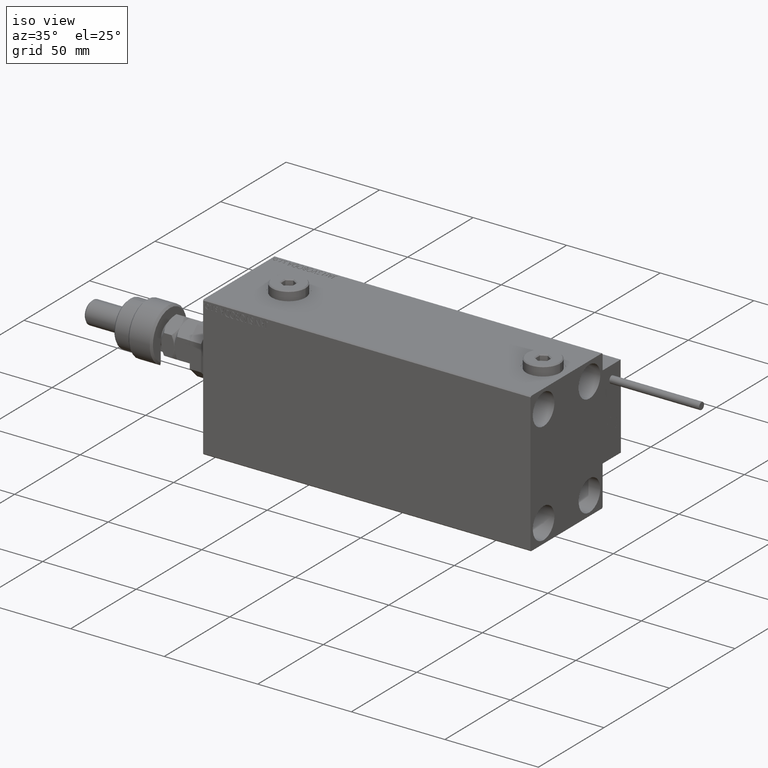
[diagram: clean part render]
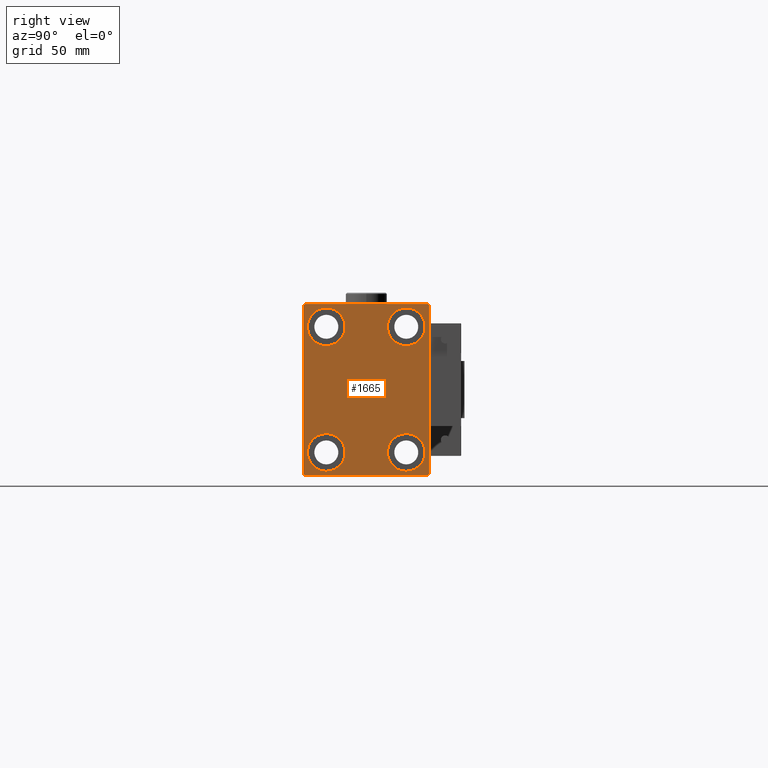
[diagram: tour spotlight — one face highlighted and labeled with its STEP entity id]
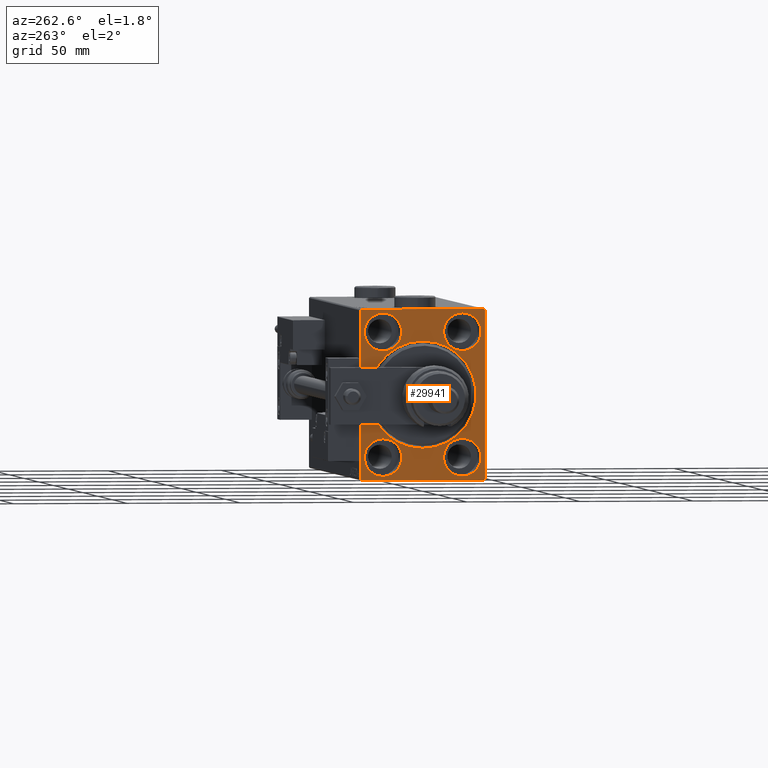
[diagram: tour spotlight — one face highlighted and labeled with its STEP entity id]
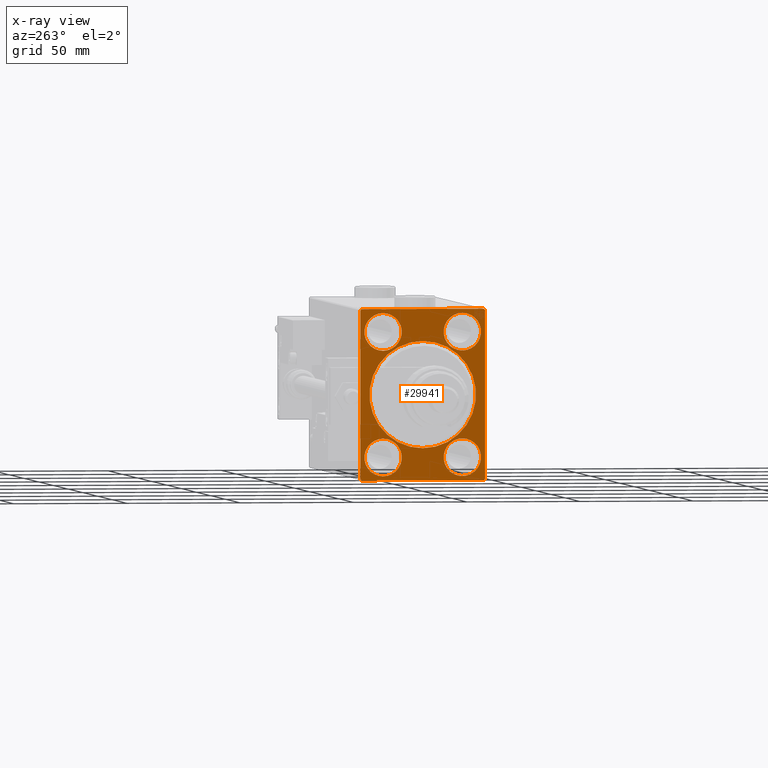
[diagram: x-ray of the same camera — body ghosted, this tour face saturated]
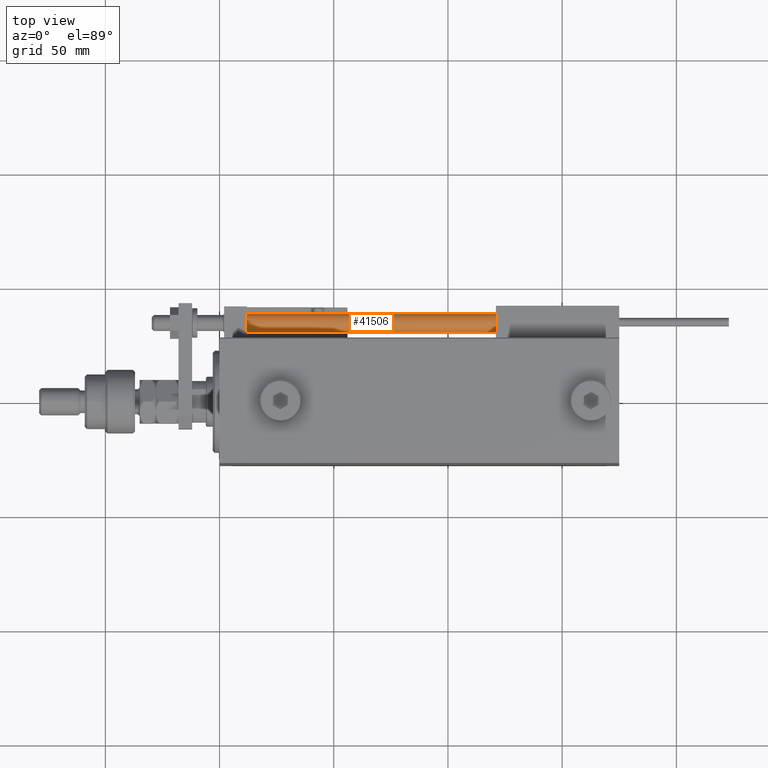
[diagram: tour spotlight — one face highlighted and labeled with its STEP entity id]
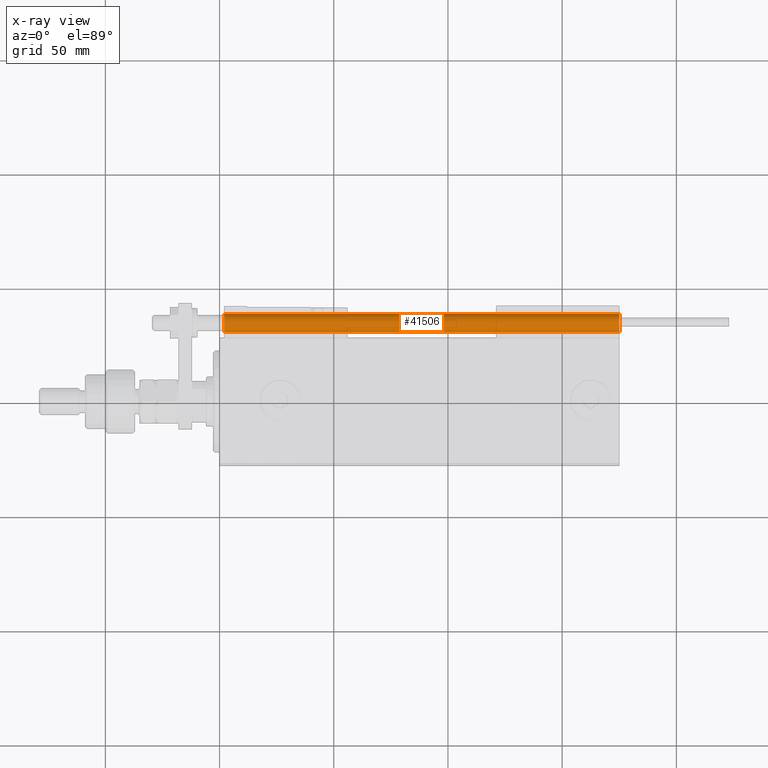
[diagram: x-ray of the same camera — body ghosted, this tour face saturated]
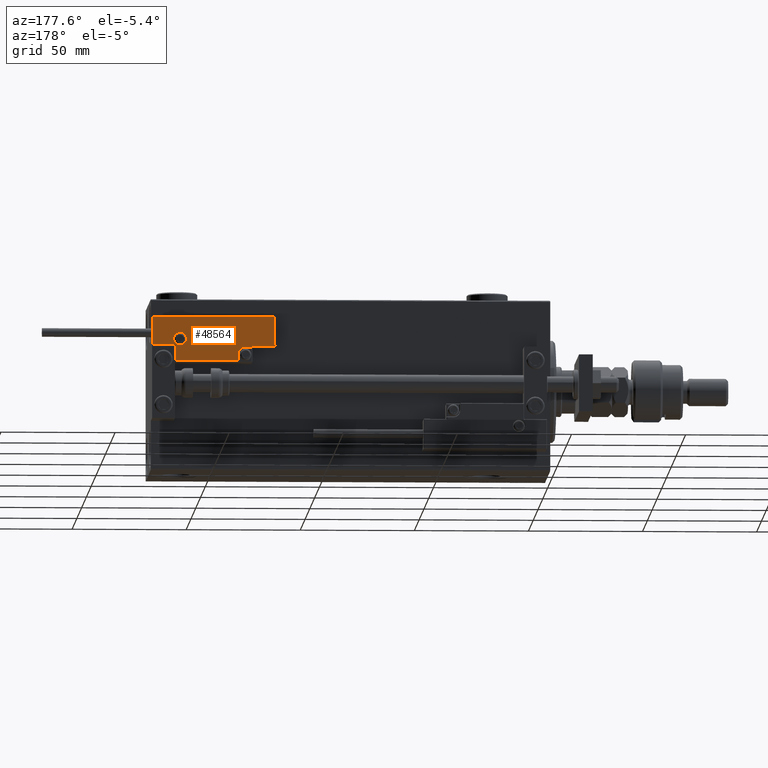
[diagram: tour spotlight — one face highlighted and labeled with its STEP entity id]
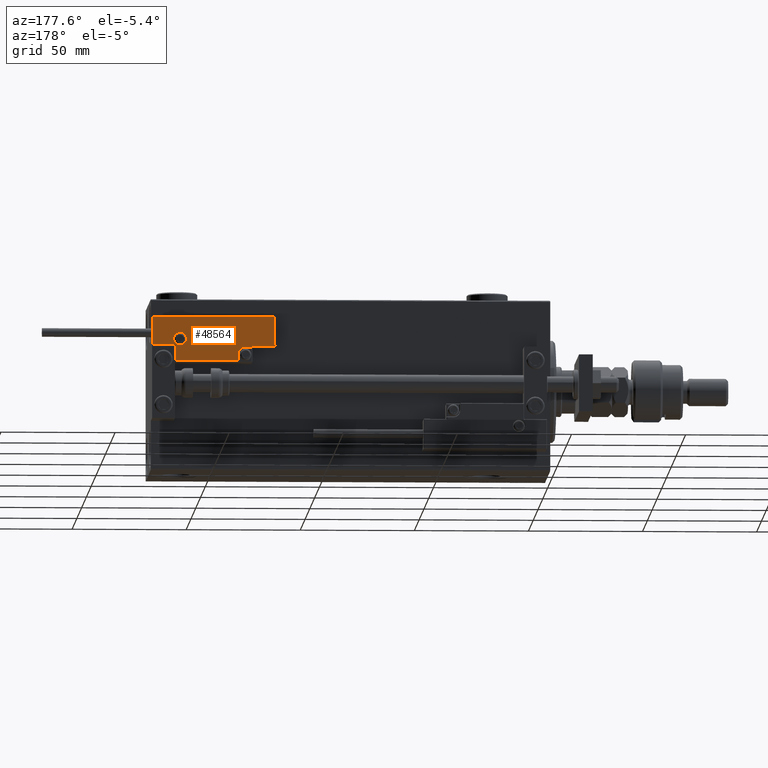
[diagram: tour spotlight — one face highlighted and labeled with its STEP entity id]
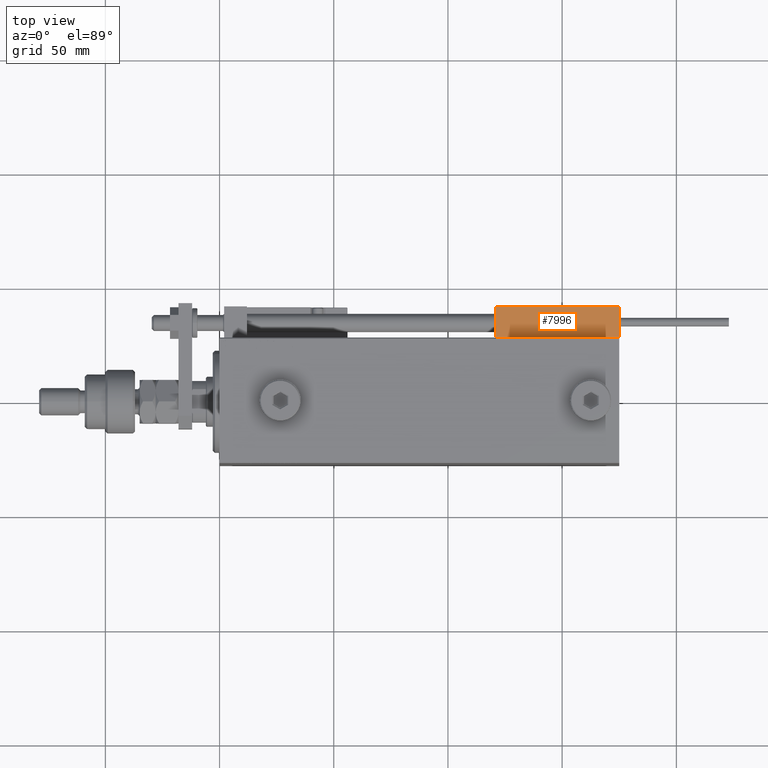
[diagram: tour spotlight — one face highlighted and labeled with its STEP entity id]
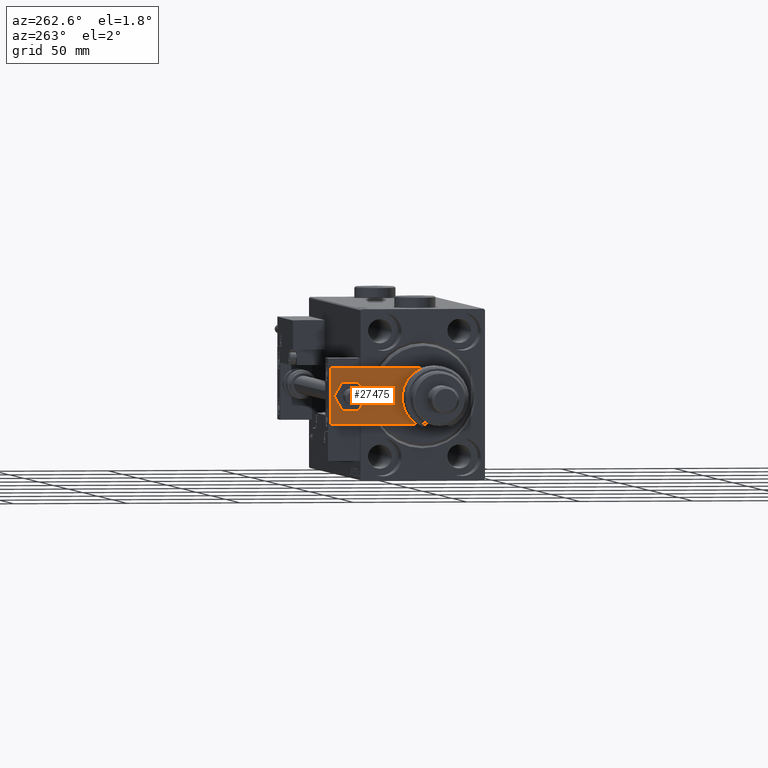
[diagram: tour spotlight — one face highlighted and labeled with its STEP entity id]
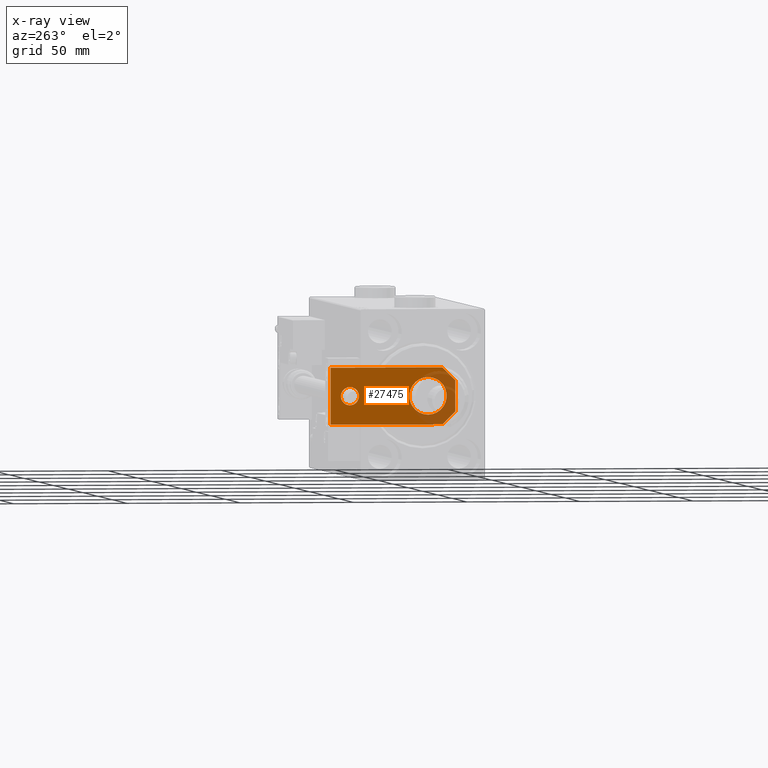
[diagram: x-ray of the same camera — body ghosted, this tour face saturated]
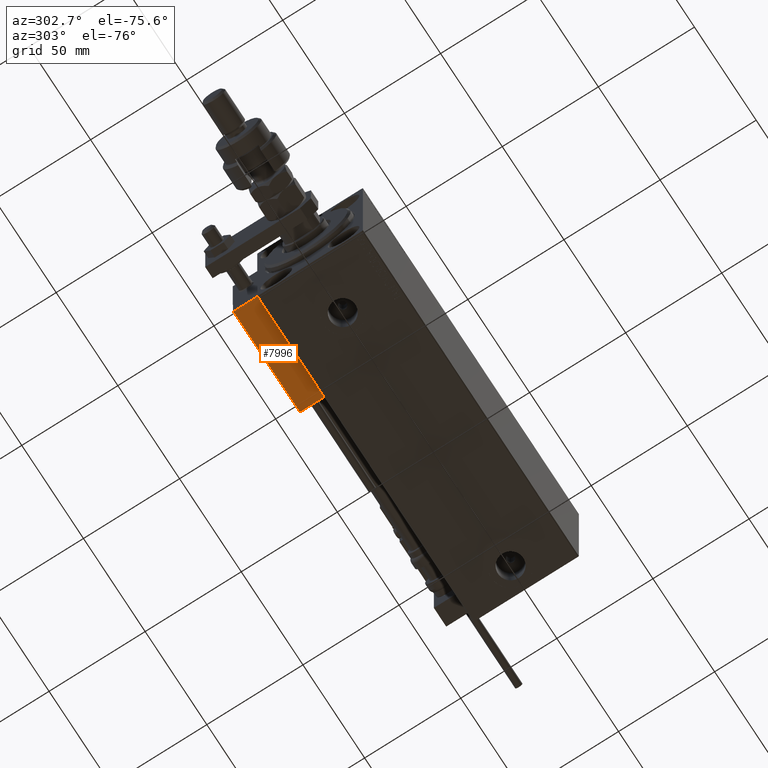
[diagram: tour spotlight — one face highlighted and labeled with its STEP entity id]
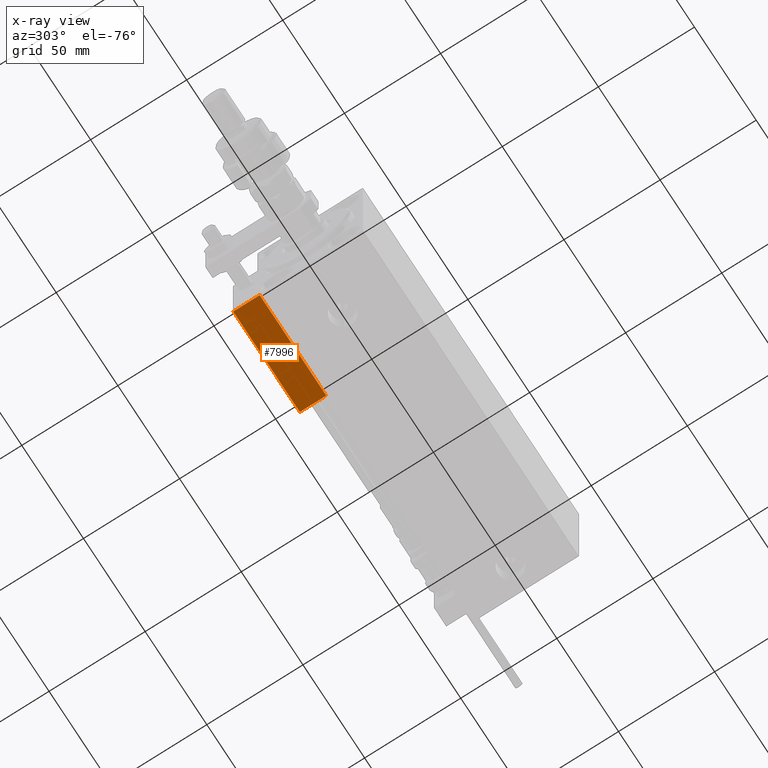
[diagram: x-ray of the same camera — body ghosted, this tour face saturated]
A machine part: a face-by-face anatomy tour. The part has 1421 B-rep faces; the first image is the clean iso view, then the 8 largest visible faces are spotlighted one at a time (largest first), each with its STEP entity span.

Face 1 — right view, entity #1665. In plain terms, the highlighted planar face has unit normal (1, 0, 0).
Definition (entity closure, byte-faithful):
#1 = VECTOR ( 'NONE', #30977, 1000.000000000000000 ) ;
#24 = DIRECTION ( 'NONE',  ( -1.000000000000000000, -0.000000000000000000, -0.000000000000000000 ) ) ;
#876 = LINE ( 'NONE', #41845, #34426 ) ;
#1599 = LINE ( 'NONE', #27129, #1 ) ;
#1665 = ADVANCED_FACE ( 'NONE', ( #17173, #25956, #50699, #13058, #35497 ), #42735, .T. ) ;
#2026 = ORIENTED_EDGE ( 'NONE', *, *, #29050, .T. ) ;
#2481 = CARTESIAN_POINT ( 'NONE',  ( 175.0000000000000000, 17.50000000000000355, 19.25000000000000000 ) ) ;
#4352 = DIRECTION ( 'NONE',  ( -1.000000000000000000, -0.000000000000000000, -0.000000000000000000 ) ) ;
#5099 = CARTESIAN_POINT ( 'NONE',  ( 175.0000000000000000, 0.000000000000000000, 0.000000000000000000 ) ) ;
#5293 = AXIS2_PLACEMENT_3D ( 'NONE', #5099, #38594, #31087 ) ;
#5535 = VECTOR ( 'NONE', #32353, 1000.000000000000000 ) ;
#5718 = AXIS2_PLACEMENT_3D ( 'NONE', #42086, #24, #50588 ) ;
#6339 = VERTEX_POINT ( 'NONE', #41924 ) ;
#6546 = AXIS2_PLACEMENT_3D ( 'NONE', #26437, #21780, #29757 ) ;
#6704 = CIRCLE ( 'NONE', #24222, 8.249999999999992895 ) ;
#7265 = EDGE_CURVE ( 'NONE', #39614, #28808, #47582, .T. ) ;
#8871 = CARTESIAN_POINT ( 'NONE',  ( 175.0000000000000000, -32.24999999999923972, -32.25000000000103029 ) ) ;
#9365 = CARTESIAN_POINT ( 'NONE',  ( 175.0000000000000000, 27.00000000000003197, -37.50000000000000000 ) ) ;
#9655 = CARTESIAN_POINT ( 'NONE',  ( 175.0000000000000000, -27.50000000000000355, -37.00000000000000000 ) ) ;
#9723 = VECTOR ( 'NONE', #39308, 1000.000000000000000 ) ;
#10058 = CARTESIAN_POINT ( 'NONE',  ( 175.0000000000000000, -17.50000000000000355, -35.75000000000000711 ) ) ;
#10834 = ORIENTED_EDGE ( 'NONE', *, *, #47599, .T. ) ;
#11512 = ORIENTED_EDGE ( 'NONE', *, *, #7265, .T. ) ;
#11746 = CARTESIAN_POINT ( 'NONE',  ( 175.0000000000000000, 17.50000000000000355, 27.49999999999999645 ) ) ;
#11799 = VECTOR ( 'NONE', #12727, 1000.000000000000000 ) ;
#11919 = AXIS2_PLACEMENT_3D ( 'NONE', #47642, #22897, #31421 ) ;
#12056 = ORIENTED_EDGE ( 'NONE', *, *, #36606, .T. ) ;
#12185 = LINE ( 'NONE', #8871, #11799 ) ;
#12335 = VERTEX_POINT ( 'NONE', #36395 ) ;
#12372 = AXIS2_PLACEMENT_3D ( 'NONE', #41067, #52692, #37205 ) ;
#12620 = EDGE_CURVE ( 'NONE', #29214, #26929, #17047, .T. ) ;
#12727 = DIRECTION ( 'NONE',  ( -0.000000000000000000, 0.7071067811865672237, -0.7071067811865279218 ) ) ;
#13058 = FACE_BOUND ( 'NONE', #13875, .T. ) ;
#13343 = ORIENTED_EDGE ( 'NONE', *, *, #30656, .T. ) ;
#13875 = EDGE_LOOP ( 'NONE', ( #51835, #28085 ) ) ;
#14294 = CARTESIAN_POINT ( 'NONE',  ( 175.0000000000000000, 32.24999999999981526, 32.25000000000025580 ) ) ;
#14405 = CIRCLE ( 'NONE', #52163, 8.250000000000000000 ) ;
#14661 = ORIENTED_EDGE ( 'NONE', *, *, #47263, .T. ) ;
#15367 = EDGE_CURVE ( 'NONE', #38590, #53054, #35609, .T. ) ;
#15881 = EDGE_CURVE ( 'NONE', #28808, #39614, #6704, .T. ) ;
#16137 = CARTESIAN_POINT ( 'NONE',  ( 175.0000000000000000, 27.50000000000000355, -37.00000000000002842 ) ) ;
#16487 = CARTESIAN_POINT ( 'NONE',  ( 175.0000000000000000, 17.50000000000000355, 35.74999999999999289 ) ) ;
#16651 = CARTESIAN_POINT ( 'NONE',  ( 175.0000000000000000, -17.49999999999999645, 19.25000000000000000 ) ) ;
#16919 = VERTEX_POINT ( 'NONE', #35193 ) ;
#17018 = VERTEX_POINT ( 'NONE', #9655 ) ;
#17047 = CIRCLE ( 'NONE', #6546, 8.250000000000000000 ) ;
#17173 = FACE_BOUND ( 'NONE', #33568, .T. ) ;
#17598 = LINE ( 'NONE', #14294, #9723 ) ;
#19161 = DIRECTION ( 'NONE',  ( -1.000000000000000000, -0.000000000000000000, -0.000000000000000000 ) ) ;
#19431 = LINE ( 'NONE', #23834, #5535 ) ;
#21780 = DIRECTION ( 'NONE',  ( -1.000000000000000000, -0.000000000000000000, -0.000000000000000000 ) ) ;
#22167 = DIRECTION ( 'NONE',  ( 0.000000000000000000, 0.000000000000000000, 1.000000000000000000 ) ) ;
#22797 = CARTESIAN_POINT ( 'NONE',  ( 175.0000000000000000, -17.50000000000000355, -27.50000000000000355 ) ) ;
#22897 = DIRECTION ( 'NONE',  ( -1.000000000000000000, -0.000000000000000000, -0.000000000000000000 ) ) ;
#23165 = CARTESIAN_POINT ( 'NONE',  ( 175.0000000000000000, 17.49999999999999645, -27.50000000000000355 ) ) ;
#23834 = CARTESIAN_POINT ( 'NONE',  ( 175.0000000000000000, 27.49999999999999645, 37.50000000000000711 ) ) ;
#24119 = ORIENTED_EDGE ( 'NONE', *, *, #44646, .T. ) ;
#24222 = AXIS2_PLACEMENT_3D ( 'NONE', #47176, #4352, #22167 ) ;
#24618 = EDGE_LOOP ( 'NONE', ( #37835, #11512 ) ) ;
#25041 = CIRCLE ( 'NONE', #5718, 8.249999999999992895 ) ;
#25387 = VECTOR ( 'NONE', #51333, 1000.000000000000114 ) ;
#25956 = FACE_BOUND ( 'NONE', #49634, .T. ) ;
#26437 = CARTESIAN_POINT ( 'NONE',  ( 175.0000000000000000, -17.50000000000000355, -27.50000000000000355 ) ) ;
#26929 = VERTEX_POINT ( 'NONE', #34648 ) ;
#26958 = CARTESIAN_POINT ( 'NONE',  ( 175.0000000000000000, 17.49999999999999645, -35.75000000000000711 ) ) ;
#27052 = LINE ( 'NONE', #46933, #25387 ) ;
#27129 = CARTESIAN_POINT ( 'NONE',  ( 175.0000000000000000, -27.50000000000000355, -37.50000000000000000 ) ) ;
#27191 = ORIENTED_EDGE ( 'NONE', *, *, #50987, .T. ) ;
#28036 = EDGE_CURVE ( 'NONE', #42176, #29123, #27052, .T. ) ;
#28085 = ORIENTED_EDGE ( 'NONE', *, *, #31218, .T. ) ;
#28713 = VERTEX_POINT ( 'NONE', #51677 ) ;
#28808 = VERTEX_POINT ( 'NONE', #2481 ) ;
#29050 = EDGE_CURVE ( 'NONE', #28713, #42176, #1599, .T. ) ;
#29123 = VERTEX_POINT ( 'NONE', #16137 ) ;
#29214 = VERTEX_POINT ( 'NONE', #10058 ) ;
#29323 = ORIENTED_EDGE ( 'NONE', *, *, #39361, .T. ) ;
#29757 = DIRECTION ( 'NONE',  ( 0.000000000000000000, 0.000000000000000000, 1.000000000000000000 ) ) ;
#30656 = EDGE_CURVE ( 'NONE', #53820, #6339, #40458, .T. ) ;
#30799 = VECTOR ( 'NONE', #38432, 1000.000000000000000 ) ;
#30977 = DIRECTION ( 'NONE',  ( 0.000000000000000000, 1.000000000000000000, 0.000000000000000000 ) ) ;
#31087 = DIRECTION ( 'NONE',  ( 0.000000000000000000, 0.000000000000000000, -1.000000000000000000 ) ) ;
#31218 = EDGE_CURVE ( 'NONE', #26929, #29214, #47501, .T. ) ;
#31421 = DIRECTION ( 'NONE',  ( 0.000000000000000000, 0.000000000000000000, 1.000000000000000000 ) ) ;
#31802 = DIRECTION ( 'NONE',  ( 0.000000000000000000, 0.000000000000000000, 1.000000000000000000 ) ) ;
#32353 = DIRECTION ( 'NONE',  ( 0.000000000000000000, -1.000000000000000000, -1.261617073437677999E-16 ) ) ;
#32823 = ORIENTED_EDGE ( 'NONE', *, *, #37715, .T. ) ;
#33465 = DIRECTION ( 'NONE',  ( 0.000000000000000000, -0.7071067811865474617, -0.7071067811865474617 ) ) ;
#33568 = EDGE_LOOP ( 'NONE', ( #13343, #14661 ) ) ;
#33779 = CARTESIAN_POINT ( 'NONE',  ( 175.0000000000000000, -27.50000000000000355, 37.50000000000000000 ) ) ;
#34426 = VECTOR ( 'NONE', #50081, 1000.000000000000000 ) ;
#34648 = CARTESIAN_POINT ( 'NONE',  ( 175.0000000000000000, -17.50000000000000355, -19.25000000000000355 ) ) ;
#35193 = CARTESIAN_POINT ( 'NONE',  ( 175.0000000000000000, 26.99999999999999645, 37.50000000000000711 ) ) ;
#35497 = FACE_OUTER_BOUND ( 'NONE', #44192, .T. ) ;
#35609 = CIRCLE ( 'NONE', #11919, 8.249999999999992895 ) ;
#36395 = CARTESIAN_POINT ( 'NONE',  ( 175.0000000000000000, 27.49999999999999645, 37.00000000000001421 ) ) ;
#36606 = EDGE_CURVE ( 'NONE', #12335, #16919, #17598, .T. ) ;
#36830 = CARTESIAN_POINT ( 'NONE',  ( 175.0000000000000000, -17.49999999999999645, 35.74999999999999289 ) ) ;
#37205 = DIRECTION ( 'NONE',  ( 0.000000000000000000, 0.000000000000000000, 1.000000000000000000 ) ) ;
#37715 = EDGE_CURVE ( 'NONE', #42710, #17018, #42037, .T. ) ;
#37835 = ORIENTED_EDGE ( 'NONE', *, *, #15881, .T. ) ;
#38432 = DIRECTION ( 'NONE',  ( 0.000000000000000000, 0.000000000000000000, -1.000000000000000000 ) ) ;
#38590 = VERTEX_POINT ( 'NONE', #36830 ) ;
#38594 = DIRECTION ( 'NONE',  ( 1.000000000000000000, 0.000000000000000000, 0.000000000000000000 ) ) ;
#39308 = DIRECTION ( 'NONE',  ( -0.000000000000000000, -0.7071067811865524577, 0.7071067811865426878 ) ) ;
#39361 = EDGE_CURVE ( 'NONE', #29123, #12335, #876, .T. ) ;
#39614 = VERTEX_POINT ( 'NONE', #16487 ) ;
#40458 = CIRCLE ( 'NONE', #12372, 8.250000000000000000 ) ;
#41035 = DIRECTION ( 'NONE',  ( 0.000000000000000000, 0.000000000000000000, 1.000000000000000000 ) ) ;
#41067 = CARTESIAN_POINT ( 'NONE',  ( 175.0000000000000000, 17.49999999999999645, -27.50000000000000355 ) ) ;
#41845 = CARTESIAN_POINT ( 'NONE',  ( 175.0000000000000000, 27.50000000000000355, -37.50000000000000000 ) ) ;
#41924 = CARTESIAN_POINT ( 'NONE',  ( 175.0000000000000000, 17.49999999999999645, -19.25000000000000355 ) ) ;
#42037 = LINE ( 'NONE', #33779, #30799 ) ;
#42086 = CARTESIAN_POINT ( 'NONE',  ( 175.0000000000000000, -17.49999999999999645, 27.49999999999999645 ) ) ;
#42162 = CARTESIAN_POINT ( 'NONE',  ( 175.0000000000000000, -27.00000000000000355, 37.50000000000000000 ) ) ;
#42176 = VERTEX_POINT ( 'NONE', #9365 ) ;
#42485 = CARTESIAN_POINT ( 'NONE',  ( 175.0000000000000000, -27.50000000000000355, 37.00000000000000000 ) ) ;
#42710 = VERTEX_POINT ( 'NONE', #42485 ) ;
#42735 = PLANE ( 'NONE',  #5293 ) ;
#43441 = DIRECTION ( 'NONE',  ( 0.000000000000000000, 0.000000000000000000, 1.000000000000000000 ) ) ;
#43714 = DIRECTION ( 'NONE',  ( -1.000000000000000000, -0.000000000000000000, -0.000000000000000000 ) ) ;
#44192 = EDGE_LOOP ( 'NONE', ( #24119, #27191, #32823, #10834, #2026, #47182, #29323, #12056 ) ) ;
#44445 = ORIENTED_EDGE ( 'NONE', *, *, #15367, .T. ) ;
#44646 = EDGE_CURVE ( 'NONE', #16919, #45196, #19431, .T. ) ;
#44864 = ORIENTED_EDGE ( 'NONE', *, *, #49771, .T. ) ;
#45034 = CARTESIAN_POINT ( 'NONE',  ( 175.0000000000000000, -32.25000000000000000, 32.25000000000000000 ) ) ;
#45196 = VERTEX_POINT ( 'NONE', #42162 ) ;
#46933 = CARTESIAN_POINT ( 'NONE',  ( 175.0000000000000000, 32.25000000000001421, -32.25000000000001421 ) ) ;
#47176 = CARTESIAN_POINT ( 'NONE',  ( 175.0000000000000000, 17.50000000000000355, 27.49999999999999645 ) ) ;
#47182 = ORIENTED_EDGE ( 'NONE', *, *, #28036, .T. ) ;
#47263 = EDGE_CURVE ( 'NONE', #6339, #53820, #14405, .T. ) ;
#47501 = CIRCLE ( 'NONE', #53661, 8.250000000000000000 ) ;
#47582 = CIRCLE ( 'NONE', #51125, 8.249999999999992895 ) ;
#47599 = EDGE_CURVE ( 'NONE', #17018, #28713, #12185, .T. ) ;
#47642 = CARTESIAN_POINT ( 'NONE',  ( 175.0000000000000000, -17.49999999999999645, 27.49999999999999645 ) ) ;
#48718 = DIRECTION ( 'NONE',  ( -1.000000000000000000, -0.000000000000000000, -0.000000000000000000 ) ) ;
#49634 = EDGE_LOOP ( 'NONE', ( #44864, #44445 ) ) ;
#49771 = EDGE_CURVE ( 'NONE', #53054, #38590, #25041, .T. ) ;
#50081 = DIRECTION ( 'NONE',  ( 0.000000000000000000, -9.251858538542970348E-17, 1.000000000000000000 ) ) ;
#50588 = DIRECTION ( 'NONE',  ( 0.000000000000000000, 0.000000000000000000, 1.000000000000000000 ) ) ;
#50699 = FACE_BOUND ( 'NONE', #24618, .T. ) ;
#50987 = EDGE_CURVE ( 'NONE', #45196, #42710, #54359, .T. ) ;
#51125 = AXIS2_PLACEMENT_3D ( 'NONE', #11746, #19161, #31802 ) ;
#51333 = DIRECTION ( 'NONE',  ( -0.000000000000000000, 0.7071067811865474617, 0.7071067811865474617 ) ) ;
#51409 = VECTOR ( 'NONE', #33465, 1000.000000000000114 ) ;
#51677 = CARTESIAN_POINT ( 'NONE',  ( 175.0000000000000000, -26.99999999999997513, -37.50000000000000000 ) ) ;
#51835 = ORIENTED_EDGE ( 'NONE', *, *, #12620, .T. ) ;
#52163 = AXIS2_PLACEMENT_3D ( 'NONE', #23165, #48718, #41035 ) ;
#52692 = DIRECTION ( 'NONE',  ( -1.000000000000000000, -0.000000000000000000, -0.000000000000000000 ) ) ;
#53054 = VERTEX_POINT ( 'NONE', #16651 ) ;
#53661 = AXIS2_PLACEMENT_3D ( 'NONE', #22797, #43714, #43441 ) ;
#53820 = VERTEX_POINT ( 'NONE', #26958 ) ;
#54359 = LINE ( 'NONE', #45034, #51409 ) ;

Face 2 — auxiliary view, entity #29941. An x-ray twin of the same camera follows (body ghosted, this face saturated) — the face is partly hidden behind the body. In plain terms, the highlighted planar face has unit normal (1, 0, 0).
Definition (entity closure, byte-faithful):
#103 = EDGE_LOOP ( 'NONE', ( #789, #35419 ) ) ;
#209 = AXIS2_PLACEMENT_3D ( 'NONE', #46341, #20789, #54067 ) ;
#298 = VERTEX_POINT ( 'NONE', #22466 ) ;
#569 = FACE_BOUND ( 'NONE', #103, .T. ) ;
#789 = ORIENTED_EDGE ( 'NONE', *, *, #36528, .F. ) ;
#837 = DIRECTION ( 'NONE',  ( 1.000000000000000000, 0.000000000000000000, 0.000000000000000000 ) ) ;
#1111 = FACE_BOUND ( 'NONE', #44637, .T. ) ;
#2027 = CIRCLE ( 'NONE', #20456, 8.250000000000000000 ) ;
#2279 = DIRECTION ( 'NONE',  ( 1.000000000000000000, 0.000000000000000000, 0.000000000000000000 ) ) ;
#2619 = CARTESIAN_POINT ( 'NONE',  ( 0.000000000000000000, 2.877919977996279137E-15, -23.49999999999998934 ) ) ;
#2689 = CARTESIAN_POINT ( 'NONE',  ( 0.000000000000000000, 17.50000000000000355, 35.74999999999999289 ) ) ;
#2877 = DIRECTION ( 'NONE',  ( -1.000000000000000000, 0.000000000000000000, 0.000000000000000000 ) ) ;
#3949 = ORIENTED_EDGE ( 'NONE', *, *, #46542, .T. ) ;
#4012 = LINE ( 'NONE', #41650, #19592 ) ;
#4084 = LINE ( 'NONE', #23863, #29427 ) ;
#4117 = CIRCLE ( 'NONE', #44472, 8.249999999999992895 ) ;
#4180 = DIRECTION ( 'NONE',  ( 0.000000000000000000, 0.000000000000000000, 1.000000000000000000 ) ) ;
#4342 = CIRCLE ( 'NONE', #13116, 8.250000000000000000 ) ;
#4894 = DIRECTION ( 'NONE',  ( -0.000000000000000000, 0.7071067811865524577, -0.7071067811865426878 ) ) ;
#5440 = CARTESIAN_POINT ( 'NONE',  ( 0.000000000000000000, -17.49999999999999645, 35.74999999999999289 ) ) ;
#5908 = ORIENTED_EDGE ( 'NONE', *, *, #16572, .T. ) ;
#6218 = CARTESIAN_POINT ( 'NONE',  ( 0.000000000000000000, -17.50000000000000355, -19.25000000000000355 ) ) ;
#6350 = VERTEX_POINT ( 'NONE', #17171 ) ;
#6519 = ORIENTED_EDGE ( 'NONE', *, *, #53234, .T. ) ;
#7317 = EDGE_CURVE ( 'NONE', #11875, #46832, #23899, .T. ) ;
#7909 = VERTEX_POINT ( 'NONE', #15405 ) ;
#8520 = EDGE_CURVE ( 'NONE', #44645, #298, #16164, .T. ) ;
#8699 = DIRECTION ( 'NONE',  ( -1.000000000000000000, 0.000000000000000000, 0.000000000000000000 ) ) ;
#8820 = PLANE ( 'NONE',  #49161 ) ;
#9905 = DIRECTION ( 'NONE',  ( -1.000000000000000000, 0.000000000000000000, 0.000000000000000000 ) ) ;
#10271 = DIRECTION ( 'NONE',  ( -1.000000000000000000, 0.000000000000000000, 0.000000000000000000 ) ) ;
#10284 = EDGE_CURVE ( 'NONE', #29830, #24703, #4012, .T. ) ;
#10340 = DIRECTION ( 'NONE',  ( 0.000000000000000000, -9.251858538542970348E-17, 1.000000000000000000 ) ) ;
#10504 = CARTESIAN_POINT ( 'NONE',  ( 0.000000000000000000, 17.49999999999999645, -27.50000000000000355 ) ) ;
#11875 = VERTEX_POINT ( 'NONE', #37656 ) ;
#13116 = AXIS2_PLACEMENT_3D ( 'NONE', #17328, #9905, #21983 ) ;
#13743 = FACE_BOUND ( 'NONE', #46792, .T. ) ;
#14348 = DIRECTION ( 'NONE',  ( 0.000000000000000000, 0.000000000000000000, 1.000000000000000000 ) ) ;
#14427 = CARTESIAN_POINT ( 'NONE',  ( 0.000000000000000000, -26.99999999999997513, -37.50000000000000000 ) ) ;
#14971 = AXIS2_PLACEMENT_3D ( 'NONE', #20649, #42633, #4180 ) ;
#15026 = AXIS2_PLACEMENT_3D ( 'NONE', #21057, #34512, #17477 ) ;
#15405 = CARTESIAN_POINT ( 'NONE',  ( 0.000000000000000000, 27.00000000000003197, -37.50000000000000000 ) ) ;
#16164 = CIRCLE ( 'NONE', #53912, 8.249999999999992895 ) ;
#16572 = EDGE_CURVE ( 'NONE', #17666, #7909, #16878, .T. ) ;
#16754 = CIRCLE ( 'NONE', #25537, 23.49999999999998934 ) ;
#16878 = LINE ( 'NONE', #29509, #45298 ) ;
#17060 = FACE_OUTER_BOUND ( 'NONE', #23179, .T. ) ;
#17171 = CARTESIAN_POINT ( 'NONE',  ( 0.000000000000000000, -27.50000000000000355, -37.00000000000000000 ) ) ;
#17181 = CARTESIAN_POINT ( 'NONE',  ( 0.000000000000000000, 26.99999999999999645, 37.50000000000000711 ) ) ;
#17242 = CARTESIAN_POINT ( 'NONE',  ( 0.000000000000000000, 26.99999999999999645, 37.50000000000000711 ) ) ;
#17328 = CARTESIAN_POINT ( 'NONE',  ( 0.000000000000000000, 17.49999999999999645, -27.50000000000000355 ) ) ;
#17477 = DIRECTION ( 'NONE',  ( 0.000000000000000000, 0.000000000000000000, 1.000000000000000000 ) ) ;
#17666 = VERTEX_POINT ( 'NONE', #29994 ) ;
#17811 = EDGE_LOOP ( 'NONE', ( #23529, #48546 ) ) ;
#17862 = CARTESIAN_POINT ( 'NONE',  ( 0.000000000000000000, -27.50000000000000355, 37.00000000000000000 ) ) ;
#19261 = CIRCLE ( 'NONE', #50842, 8.250000000000000000 ) ;
#19339 = CARTESIAN_POINT ( 'NONE',  ( 0.000000000000000000, 17.49999999999999645, -35.75000000000000711 ) ) ;
#19561 = VERTEX_POINT ( 'NONE', #38868 ) ;
#19592 = VECTOR ( 'NONE', #54024, 1000.000000000000000 ) ;
#20204 = ORIENTED_EDGE ( 'NONE', *, *, #46828, .F. ) ;
#20456 = AXIS2_PLACEMENT_3D ( 'NONE', #21049, #8699, #21320 ) ;
#20649 = CARTESIAN_POINT ( 'NONE',  ( 0.000000000000000000, -17.49999999999999645, 27.49999999999999645 ) ) ;
#20789 = DIRECTION ( 'NONE',  ( -1.000000000000000000, 0.000000000000000000, 0.000000000000000000 ) ) ;
#20819 = DIRECTION ( 'NONE',  ( 0.000000000000000000, 0.000000000000000000, -1.000000000000000000 ) ) ;
#21049 = CARTESIAN_POINT ( 'NONE',  ( 0.000000000000000000, -17.50000000000000355, -27.50000000000000355 ) ) ;
#21057 = CARTESIAN_POINT ( 'NONE',  ( 0.000000000000000000, -17.49999999999999645, 27.49999999999999645 ) ) ;
#21320 = DIRECTION ( 'NONE',  ( 0.000000000000000000, 0.000000000000000000, 1.000000000000000000 ) ) ;
#21741 = LINE ( 'NONE', #39325, #32819 ) ;
#21983 = DIRECTION ( 'NONE',  ( 0.000000000000000000, 0.000000000000000000, 1.000000000000000000 ) ) ;
#21984 = DIRECTION ( 'NONE',  ( 0.000000000000000000, 0.000000000000000000, -1.000000000000000000 ) ) ;
#22080 = CARTESIAN_POINT ( 'NONE',  ( 0.000000000000000000, 17.50000000000000355, 27.49999999999999645 ) ) ;
#22466 = CARTESIAN_POINT ( 'NONE',  ( 0.000000000000000000, 17.50000000000000355, 19.25000000000000000 ) ) ;
#22531 = CARTESIAN_POINT ( 'NONE',  ( 0.000000000000000000, -27.50000000000000355, -37.50000000000000000 ) ) ;
#22575 = EDGE_CURVE ( 'NONE', #32024, #19561, #43652, .T. ) ;
#23179 = EDGE_LOOP ( 'NONE', ( #40794, #3949, #43891, #43113, #20204, #5908, #54017, #6519 ) ) ;
#23205 = DIRECTION ( 'NONE',  ( -0.000000000000000000, -0.7071067811865672237, 0.7071067811865279218 ) ) ;
#23529 = ORIENTED_EDGE ( 'NONE', *, *, #44960, .F. ) ;
#23863 = CARTESIAN_POINT ( 'NONE',  ( 0.000000000000000000, -27.50000000000000355, 37.50000000000000000 ) ) ;
#23899 = CIRCLE ( 'NONE', #209, 8.250000000000000000 ) ;
#24703 = VERTEX_POINT ( 'NONE', #42744 ) ;
#24834 = DIRECTION ( 'NONE',  ( 1.000000000000000000, 0.000000000000000000, 0.000000000000000000 ) ) ;
#25296 = CARTESIAN_POINT ( 'NONE',  ( 0.000000000000000000, 0.000000000000000000, 0.000000000000000000 ) ) ;
#25537 = AXIS2_PLACEMENT_3D ( 'NONE', #28412, #24834, #53987 ) ;
#26024 = LINE ( 'NONE', #17242, #53195 ) ;
#26114 = FACE_BOUND ( 'NONE', #35788, .T. ) ;
#26207 = DIRECTION ( 'NONE',  ( 0.000000000000000000, 0.000000000000000000, 1.000000000000000000 ) ) ;
#27532 = EDGE_CURVE ( 'NONE', #52458, #49316, #19261, .T. ) ;
#27662 = VECTOR ( 'NONE', #23205, 1000.000000000000000 ) ;
#27735 = VERTEX_POINT ( 'NONE', #17862 ) ;
#27823 = EDGE_CURVE ( 'NONE', #49316, #52458, #4342, .T. ) ;
#28412 = CARTESIAN_POINT ( 'NONE',  ( 0.000000000000000000, 0.000000000000000000, 0.000000000000000000 ) ) ;
#29000 = CIRCLE ( 'NONE', #14971, 8.249999999999992895 ) ;
#29427 = VECTOR ( 'NONE', #20819, 1000.000000000000000 ) ;
#29509 = CARTESIAN_POINT ( 'NONE',  ( 0.000000000000000000, 27.50000000000000355, -37.00000000000002842 ) ) ;
#29591 = AXIS2_PLACEMENT_3D ( 'NONE', #39374, #2279, #43245 ) ;
#29681 = CARTESIAN_POINT ( 'NONE',  ( 0.000000000000000000, -26.99999999999997513, -37.50000000000000000 ) ) ;
#29830 = VERTEX_POINT ( 'NONE', #17181 ) ;
#29907 = ORIENTED_EDGE ( 'NONE', *, *, #30670, .T. ) ;
#29941 = ADVANCED_FACE ( 'NONE', ( #26114, #13743, #569, #1111, #41804, #17060 ), #8820, .F. ) ;
#29994 = CARTESIAN_POINT ( 'NONE',  ( 0.000000000000000000, 27.50000000000000355, -37.00000000000002842 ) ) ;
#30670 = EDGE_CURVE ( 'NONE', #19561, #32024, #16754, .T. ) ;
#30855 = CARTESIAN_POINT ( 'NONE',  ( 0.000000000000000000, -17.49999999999999645, 19.25000000000000000 ) ) ;
#31167 = EDGE_CURVE ( 'NONE', #51595, #7909, #43987, .T. ) ;
#31317 = DIRECTION ( 'NONE',  ( 0.000000000000000000, 1.000000000000000000, 0.000000000000000000 ) ) ;
#31448 = LINE ( 'NONE', #14427, #27662 ) ;
#31693 = CIRCLE ( 'NONE', #15026, 8.249999999999992895 ) ;
#31791 = EDGE_CURVE ( 'NONE', #47146, #52016, #31693, .T. ) ;
#32024 = VERTEX_POINT ( 'NONE', #2619 ) ;
#32148 = VERTEX_POINT ( 'NONE', #44535 ) ;
#32819 = VECTOR ( 'NONE', #38507, 1000.000000000000114 ) ;
#33078 = DIRECTION ( 'NONE',  ( 0.000000000000000000, 0.000000000000000000, 1.000000000000000000 ) ) ;
#33645 = DIRECTION ( 'NONE',  ( 0.000000000000000000, -0.7071067811865474617, -0.7071067811865474617 ) ) ;
#34512 = DIRECTION ( 'NONE',  ( -1.000000000000000000, 0.000000000000000000, 0.000000000000000000 ) ) ;
#35419 = ORIENTED_EDGE ( 'NONE', *, *, #31791, .F. ) ;
#35788 = EDGE_LOOP ( 'NONE', ( #29907, #37826 ) ) ;
#36528 = EDGE_CURVE ( 'NONE', #52016, #47146, #29000, .T. ) ;
#37656 = CARTESIAN_POINT ( 'NONE',  ( 0.000000000000000000, -17.50000000000000355, -35.75000000000000711 ) ) ;
#37826 = ORIENTED_EDGE ( 'NONE', *, *, #22575, .T. ) ;
#38507 = DIRECTION ( 'NONE',  ( -0.000000000000000000, 0.7071067811865474617, 0.7071067811865474617 ) ) ;
#38868 = CARTESIAN_POINT ( 'NONE',  ( 0.000000000000000000, 0.000000000000000000, 23.49999999999998934 ) ) ;
#38923 = VECTOR ( 'NONE', #10340, 1000.000000000000000 ) ;
#39325 = CARTESIAN_POINT ( 'NONE',  ( 0.000000000000000000, -27.50000000000000355, 37.00000000000000000 ) ) ;
#39374 = CARTESIAN_POINT ( 'NONE',  ( 0.000000000000000000, 0.000000000000000000, 0.000000000000000000 ) ) ;
#40794 = ORIENTED_EDGE ( 'NONE', *, *, #50978, .F. ) ;
#41059 = CARTESIAN_POINT ( 'NONE',  ( 0.000000000000000000, 17.50000000000000355, 27.49999999999999645 ) ) ;
#41650 = CARTESIAN_POINT ( 'NONE',  ( 0.000000000000000000, 27.49999999999999645, 37.50000000000000711 ) ) ;
#41804 = FACE_BOUND ( 'NONE', #17811, .T. ) ;
#42633 = DIRECTION ( 'NONE',  ( -1.000000000000000000, 0.000000000000000000, 0.000000000000000000 ) ) ;
#42744 = CARTESIAN_POINT ( 'NONE',  ( 0.000000000000000000, -27.00000000000000355, 37.50000000000000000 ) ) ;
#43113 = ORIENTED_EDGE ( 'NONE', *, *, #51042, .T. ) ;
#43245 = DIRECTION ( 'NONE',  ( 0.000000000000000000, 0.000000000000000000, -1.000000000000000000 ) ) ;
#43652 = CIRCLE ( 'NONE', #29591, 23.49999999999998934 ) ;
#43785 = ORIENTED_EDGE ( 'NONE', *, *, #27532, .F. ) ;
#43891 = ORIENTED_EDGE ( 'NONE', *, *, #10284, .F. ) ;
#43987 = LINE ( 'NONE', #22531, #46562 ) ;
#44224 = ORIENTED_EDGE ( 'NONE', *, *, #52551, .F. ) ;
#44313 = DIRECTION ( 'NONE',  ( -1.000000000000000000, 0.000000000000000000, 0.000000000000000000 ) ) ;
#44472 = AXIS2_PLACEMENT_3D ( 'NONE', #41059, #2877, #33078 ) ;
#44535 = CARTESIAN_POINT ( 'NONE',  ( 0.000000000000000000, 27.49999999999999645, 37.00000000000001421 ) ) ;
#44637 = EDGE_LOOP ( 'NONE', ( #45220, #44224 ) ) ;
#44645 = VERTEX_POINT ( 'NONE', #2689 ) ;
#44960 = EDGE_CURVE ( 'NONE', #46832, #11875, #2027, .T. ) ;
#45220 = ORIENTED_EDGE ( 'NONE', *, *, #8520, .F. ) ;
#45298 = VECTOR ( 'NONE', #33645, 1000.000000000000114 ) ;
#46341 = CARTESIAN_POINT ( 'NONE',  ( 0.000000000000000000, -17.50000000000000355, -27.50000000000000355 ) ) ;
#46393 = CARTESIAN_POINT ( 'NONE',  ( 0.000000000000000000, 17.49999999999999645, -19.25000000000000355 ) ) ;
#46542 = EDGE_CURVE ( 'NONE', #27735, #24703, #21741, .T. ) ;
#46562 = VECTOR ( 'NONE', #31317, 1000.000000000000000 ) ;
#46792 = EDGE_LOOP ( 'NONE', ( #50065, #43785 ) ) ;
#46828 = EDGE_CURVE ( 'NONE', #17666, #32148, #51015, .T. ) ;
#46832 = VERTEX_POINT ( 'NONE', #6218 ) ;
#47146 = VERTEX_POINT ( 'NONE', #30855 ) ;
#47697 = CARTESIAN_POINT ( 'NONE',  ( 0.000000000000000000, 27.50000000000000355, -37.50000000000000000 ) ) ;
#48546 = ORIENTED_EDGE ( 'NONE', *, *, #7317, .F. ) ;
#49161 = AXIS2_PLACEMENT_3D ( 'NONE', #25296, #837, #21984 ) ;
#49316 = VERTEX_POINT ( 'NONE', #46393 ) ;
#50065 = ORIENTED_EDGE ( 'NONE', *, *, #27823, .F. ) ;
#50842 = AXIS2_PLACEMENT_3D ( 'NONE', #10504, #44313, #14348 ) ;
#50978 = EDGE_CURVE ( 'NONE', #27735, #6350, #4084, .T. ) ;
#51015 = LINE ( 'NONE', #47697, #38923 ) ;
#51042 = EDGE_CURVE ( 'NONE', #29830, #32148, #26024, .T. ) ;
#51595 = VERTEX_POINT ( 'NONE', #29681 ) ;
#52016 = VERTEX_POINT ( 'NONE', #5440 ) ;
#52458 = VERTEX_POINT ( 'NONE', #19339 ) ;
#52551 = EDGE_CURVE ( 'NONE', #298, #44645, #4117, .T. ) ;
#53195 = VECTOR ( 'NONE', #4894, 1000.000000000000000 ) ;
#53234 = EDGE_CURVE ( 'NONE', #51595, #6350, #31448, .T. ) ;
#53912 = AXIS2_PLACEMENT_3D ( 'NONE', #22080, #10271, #26207 ) ;
#53987 = DIRECTION ( 'NONE',  ( 0.000000000000000000, 0.000000000000000000, -1.000000000000000000 ) ) ;
#54017 = ORIENTED_EDGE ( 'NONE', *, *, #31167, .F. ) ;
#54024 = DIRECTION ( 'NONE',  ( 0.000000000000000000, -1.000000000000000000, -1.261617073437677999E-16 ) ) ;
#54067 = DIRECTION ( 'NONE',  ( 0.000000000000000000, 0.000000000000000000, 1.000000000000000000 ) ) ;

Face 3 — top view, entity #41506. An x-ray twin of the same camera follows (body ghosted, this face saturated) — the face is partly hidden behind the body. In plain terms, the highlighted cylindrical surface (edge-blend (fillet) strip) has radius 4 mm, axis along (-1, 0, 0).
Definition (entity closure, byte-faithful):
#100 = VERTEX_POINT ( 'NONE', #54123 ) ;
#1057 = LINE ( 'NONE', #51344, #17160 ) ;
#1593 = CARTESIAN_POINT ( 'NONE',  ( 0.000000000000000000, 0.000000000000000000, 175.0000000000000000 ) ) ;
#4637 = ORIENTED_EDGE ( 'NONE', *, *, #50173, .F. ) ;
#5113 = ORIENTED_EDGE ( 'NONE', *, *, #36185, .T. ) ;
#10278 = CARTESIAN_POINT ( 'NONE',  ( 4.000000000000000000, 4.898587196589412829E-16, 175.0000000000000000 ) ) ;
#11244 = DIRECTION ( 'NONE',  ( -0.000000000000000000, -0.000000000000000000, -1.000000000000000000 ) ) ;
#11389 = DIRECTION ( 'NONE',  ( -0.000000000000000000, -0.000000000000000000, 1.000000000000000000 ) ) ;
#13845 = VERTEX_POINT ( 'NONE', #10278 ) ;
#14221 = DIRECTION ( 'NONE',  ( 1.000000000000000000, 0.000000000000000000, 0.000000000000000000 ) ) ;
#15643 = CIRCLE ( 'NONE', #46347, 4.000000000000000000 ) ;
#16858 = EDGE_LOOP ( 'NONE', ( #46397, #24412, #5113, #4637 ) ) ;
#17160 = VECTOR ( 'NONE', #39508, 1000.000000000000000 ) ;
#18339 = DIRECTION ( 'NONE',  ( 0.000000000000000000, 0.000000000000000000, 1.000000000000000000 ) ) ;
#18491 = AXIS2_PLACEMENT_3D ( 'NONE', #45728, #11389, #24291 ) ;
#22130 = EDGE_CURVE ( 'NONE', #13845, #47651, #15643, .T. ) ;
#23324 = CARTESIAN_POINT ( 'NONE',  ( 4.000000000000000000, 4.898587196589412829E-16, 175.0000000000000000 ) ) ;
#24291 = DIRECTION ( 'NONE',  ( 1.000000000000000000, 0.000000000000000000, 0.000000000000000000 ) ) ;
#24412 = ORIENTED_EDGE ( 'NONE', *, *, #48231, .T. ) ;
#28497 = VECTOR ( 'NONE', #44503, 1000.000000000000000 ) ;
#28798 = DIRECTION ( 'NONE',  ( -1.000000000000000000, 0.000000000000000000, 0.000000000000000000 ) ) ;
#30583 = CARTESIAN_POINT ( 'NONE',  ( -4.000000000000000000, 0.000000000000000000, 2.000000000000029310 ) ) ;
#32960 = VERTEX_POINT ( 'NONE', #30583 ) ;
#35705 = LINE ( 'NONE', #23324, #28497 ) ;
#36185 = EDGE_CURVE ( 'NONE', #100, #32960, #43064, .T. ) ;
#36249 = FACE_OUTER_BOUND ( 'NONE', #16858, .T. ) ;
#39508 = DIRECTION ( 'NONE',  ( -0.000000000000000000, -0.000000000000000000, -1.000000000000000000 ) ) ;
#40920 = CYLINDRICAL_SURFACE ( 'NONE', #45764, 4.000000000000000000 ) ;
#41506 = ADVANCED_FACE ( 'NONE', ( #36249 ), #40920, .T. ) ;
#43064 = CIRCLE ( 'NONE', #18491, 4.000000000000000000 ) ;
#44503 = DIRECTION ( 'NONE',  ( -0.000000000000000000, -0.000000000000000000, -1.000000000000000000 ) ) ;
#45728 = CARTESIAN_POINT ( 'NONE',  ( 0.000000000000000000, 0.000000000000000000, 2.000000000000029310 ) ) ;
#45764 = AXIS2_PLACEMENT_3D ( 'NONE', #53835, #11244, #28798 ) ;
#46347 = AXIS2_PLACEMENT_3D ( 'NONE', #1593, #18339, #14221 ) ;
#46397 = ORIENTED_EDGE ( 'NONE', *, *, #22130, .F. ) ;
#47651 = VERTEX_POINT ( 'NONE', #50093 ) ;
#48231 = EDGE_CURVE ( 'NONE', #13845, #100, #35705, .T. ) ;
#50093 = CARTESIAN_POINT ( 'NONE',  ( -4.000000000000000000, 0.000000000000000000, 175.0000000000000000 ) ) ;
#50173 = EDGE_CURVE ( 'NONE', #47651, #32960, #1057, .T. ) ;
#51344 = CARTESIAN_POINT ( 'NONE',  ( -4.000000000000000000, 0.000000000000000000, 175.0000000000000000 ) ) ;
#53835 = CARTESIAN_POINT ( 'NONE',  ( 0.000000000000000000, 0.000000000000000000, 175.0000000000000000 ) ) ;
#54123 = CARTESIAN_POINT ( 'NONE',  ( 4.000000000000000000, 4.898587196589412829E-16, 2.000000000000029310 ) ) ;

Face 4 — auxiliary view, entity #48564. In plain terms, the highlighted planar face has unit normal (-0, 1, -0).
Definition (entity closure, byte-faithful):
#438 = VERTEX_POINT ( 'NONE', #15863 ) ;
#979 = EDGE_CURVE ( 'NONE', #16894, #37270, #46812, .T. ) ;
#1083 = VECTOR ( 'NONE', #43848, 1000.000000000000000 ) ;
#1513 = CARTESIAN_POINT ( 'NONE',  ( 26.70000000000006324, 7.300000000000007816, 14.00000000000000000 ) ) ;
#3024 = CARTESIAN_POINT ( 'NONE',  ( -11.99999999999994849, 9.800000000000004263, 14.00000000000000000 ) ) ;
#4755 = CIRCLE ( 'NONE', #7429, 2.800000000000000266 ) ;
#5070 = CARTESIAN_POINT ( 'NONE',  ( 10.69999999999999929, 3.000000000000003109, 14.00000000000000000 ) ) ;
#5934 = CARTESIAN_POINT ( 'NONE',  ( 11.00000000000000000, 0.3000000000000032085, 14.00000000000000000 ) ) ;
#6277 = DIRECTION ( 'NONE',  ( 0.000000000000000000, -0.000000000000000000, -1.000000000000000000 ) ) ;
#6401 = CARTESIAN_POINT ( 'NONE',  ( -16.69999999999999218, 7.300000000000003375, 14.00000000000000000 ) ) ;
#6903 = ORIENTED_EDGE ( 'NONE', *, *, #50296, .T. ) ;
#7028 = CARTESIAN_POINT ( 'NONE',  ( 26.70000000000006324, 19.70000000000001705, 14.00000000000000000 ) ) ;
#7139 = ORIENTED_EDGE ( 'NONE', *, *, #42614, .T. ) ;
#7429 = AXIS2_PLACEMENT_3D ( 'NONE', #39796, #6277, #23019 ) ;
#8044 = CARTESIAN_POINT ( 'NONE',  ( 10.69999999999999929, 0.3000000000000032085, 14.00000000000000000 ) ) ;
#8054 = EDGE_CURVE ( 'NONE', #30254, #33805, #4755, .T. ) ;
#8880 = FACE_OUTER_BOUND ( 'NONE', #32905, .T. ) ;
#9241 = LINE ( 'NONE', #5934, #42204 ) ;
#9712 = CARTESIAN_POINT ( 'NONE',  ( 10.69999999999999929, 3.000000000000003109, 14.00000000000000000 ) ) ;
#10396 = LINE ( 'NONE', #18628, #15951 ) ;
#10941 = LINE ( 'NONE', #48843, #29084 ) ;
#11396 = VECTOR ( 'NONE', #28563, 1000.000000000000000 ) ;
#11879 = CARTESIAN_POINT ( 'NONE',  ( 26.70000000000006324, 20.00000000000001776, 14.00000000000000000 ) ) ;
#11996 = DIRECTION ( 'NONE',  ( 1.000000000000000000, 0.000000000000000000, 0.000000000000000000 ) ) ;
#12549 = CARTESIAN_POINT ( 'NONE',  ( -16.69999999999999218, 0.3000000000000032085, 14.00000000000000000 ) ) ;
#12737 = CARTESIAN_POINT ( 'NONE',  ( 0.000000000000000000, 0.000000000000000000, 14.00000000000000000 ) ) ;
#13629 = AXIS2_PLACEMENT_3D ( 'NONE', #48082, #34639, #35729 ) ;
#13705 = EDGE_CURVE ( 'NONE', #44890, #21433, #23847, .T. ) ;
#15409 = ORIENTED_EDGE ( 'NONE', *, *, #13705, .T. ) ;
#15421 = ORIENTED_EDGE ( 'NONE', *, *, #36873, .T. ) ;
#15466 = LINE ( 'NONE', #11879, #42041 ) ;
#15863 = CARTESIAN_POINT ( 'NONE',  ( 16.69999999999999929, 7.300000000000009592, 14.00000000000000000 ) ) ;
#15951 = VECTOR ( 'NONE', #22740, 1000.000000000000000 ) ;
#16088 = CARTESIAN_POINT ( 'NONE',  ( -26.69999999999993534, 19.70000000000002061, 14.00000000000000000 ) ) ;
#16849 = DIRECTION ( 'NONE',  ( -0.000000000000000000, 0.000000000000000000, 1.000000000000000000 ) ) ;
#16894 = VERTEX_POINT ( 'NONE', #8044 ) ;
#17304 = VERTEX_POINT ( 'NONE', #16088 ) ;
#17394 = VERTEX_POINT ( 'NONE', #7028 ) ;
#17493 = VERTEX_POINT ( 'NONE', #25129 ) ;
#17856 = ORIENTED_EDGE ( 'NONE', *, *, #979, .T. ) ;
#18628 = CARTESIAN_POINT ( 'NONE',  ( -16.69999999999999218, 3.252606517456513302E-15, 14.00000000000000000 ) ) ;
#19463 = EDGE_LOOP ( 'NONE', ( #53892, #28789 ) ) ;
#19473 = CARTESIAN_POINT ( 'NONE',  ( 13.99999999999999822, 6.300000000000001599, 14.00000000000000000 ) ) ;
#19701 = LINE ( 'NONE', #36748, #47009 ) ;
#19789 = LINE ( 'NONE', #53064, #32257 ) ;
#20324 = VERTEX_POINT ( 'NONE', #1513 ) ;
#20708 = CARTESIAN_POINT ( 'NONE',  ( -26.69999999999994600, 7.000000000000005329, 14.00000000000000000 ) ) ;
#21433 = VERTEX_POINT ( 'NONE', #6401 ) ;
#22131 = CARTESIAN_POINT ( 'NONE',  ( -26.99999999999993605, 19.70000000000002061, 14.00000000000000000 ) ) ;
#22355 = VERTEX_POINT ( 'NONE', #12549 ) ;
#22740 = DIRECTION ( 'NONE',  ( 0.000000000000000000, -1.000000000000000000, 0.000000000000000000 ) ) ;
#23019 = DIRECTION ( 'NONE',  ( 1.000000000000000000, 0.000000000000000000, 0.000000000000000000 ) ) ;
#23546 = DIRECTION ( 'NONE',  ( 9.912705577010318647E-16, 1.000000000000000000, 0.000000000000000000 ) ) ;
#23558 = DIRECTION ( 'NONE',  ( 1.000000000000000000, -1.734723475976796001E-16, 0.000000000000000000 ) ) ;
#23671 = EDGE_CURVE ( 'NONE', #48202, #17493, #19789, .T. ) ;
#23847 = LINE ( 'NONE', #44751, #51301 ) ;
#23967 = DIRECTION ( 'NONE',  ( 0.000000000000000000, 1.000000000000000000, -0.000000000000000000 ) ) ;
#24391 = DIRECTION ( 'NONE',  ( 1.000000000000000000, -1.734723475976815230E-16, 0.000000000000000000 ) ) ;
#24489 = ORIENTED_EDGE ( 'NONE', *, *, #26615, .T. ) ;
#25129 = CARTESIAN_POINT ( 'NONE',  ( 16.69999999999999929, 6.300000000000003375, 14.00000000000000000 ) ) ;
#25628 = PLANE ( 'NONE',  #31106 ) ;
#25777 = EDGE_CURVE ( 'NONE', #17304, #44890, #29486, .T. ) ;
#26487 = AXIS2_PLACEMENT_3D ( 'NONE', #44984, #53514, #11996 ) ;
#26615 = EDGE_CURVE ( 'NONE', #20324, #17394, #15466, .T. ) ;
#28563 = DIRECTION ( 'NONE',  ( -0.000000000000000000, 1.000000000000000000, -0.000000000000000000 ) ) ;
#28789 = ORIENTED_EDGE ( 'NONE', *, *, #49866, .T. ) ;
#29084 = VECTOR ( 'NONE', #23558, 1000.000000000000000 ) ;
#29113 = CIRCLE ( 'NONE', #26487, 3.299999999999997158 ) ;
#29486 = LINE ( 'NONE', #20708, #54312 ) ;
#30254 = VERTEX_POINT ( 'NONE', #3024 ) ;
#30284 = CIRCLE ( 'NONE', #13629, 2.800000000000000266 ) ;
#31106 = AXIS2_PLACEMENT_3D ( 'NONE', #12737, #16849, #50102 ) ;
#32257 = VECTOR ( 'NONE', #53613, 1000.000000000000000 ) ;
#32363 = EDGE_CURVE ( 'NONE', #21433, #22355, #10396, .T. ) ;
#32905 = EDGE_LOOP ( 'NONE', ( #43908, #15421, #17856, #7139, #46684, #6903, #40959, #24489, #36817, #48397, #15409 ) ) ;
#33805 = VERTEX_POINT ( 'NONE', #34242 ) ;
#34151 = FACE_BOUND ( 'NONE', #19463, .T. ) ;
#34242 = CARTESIAN_POINT ( 'NONE',  ( -17.59999999999994813, 9.800000000000004263, 14.00000000000000000 ) ) ;
#34639 = DIRECTION ( 'NONE',  ( 0.000000000000000000, -0.000000000000000000, -1.000000000000000000 ) ) ;
#35729 = DIRECTION ( 'NONE',  ( 1.000000000000000000, 0.000000000000000000, 0.000000000000000000 ) ) ;
#36748 = CARTESIAN_POINT ( 'NONE',  ( 16.69999999999999929, 7.000000000000009770, 14.00000000000000000 ) ) ;
#36817 = ORIENTED_EDGE ( 'NONE', *, *, #43865, .T. ) ;
#36873 = EDGE_CURVE ( 'NONE', #22355, #16894, #9241, .T. ) ;
#37270 = VERTEX_POINT ( 'NONE', #9712 ) ;
#37952 = EDGE_CURVE ( 'NONE', #438, #20324, #10941, .T. ) ;
#39796 = CARTESIAN_POINT ( 'NONE',  ( -14.79999999999994920, 9.800000000000004263, 14.00000000000000000 ) ) ;
#40959 = ORIENTED_EDGE ( 'NONE', *, *, #37952, .T. ) ;
#41136 = CARTESIAN_POINT ( 'NONE',  ( -26.69999999999994600, 7.300000000000005151, 14.00000000000000000 ) ) ;
#41332 = DIRECTION ( 'NONE',  ( -8.006416042969869188E-16, -1.000000000000000000, 0.000000000000000000 ) ) ;
#42041 = VECTOR ( 'NONE', #23967, 1000.000000000000000 ) ;
#42204 = VECTOR ( 'NONE', #43850, 1000.000000000000000 ) ;
#42614 = EDGE_CURVE ( 'NONE', #37270, #48202, #29113, .T. ) ;
#43309 = LINE ( 'NONE', #22131, #1083 ) ;
#43848 = DIRECTION ( 'NONE',  ( -1.000000000000000000, 6.424901762877063495E-17, -0.000000000000000000 ) ) ;
#43850 = DIRECTION ( 'NONE',  ( 1.000000000000000000, -0.000000000000000000, 0.000000000000000000 ) ) ;
#43865 = EDGE_CURVE ( 'NONE', #17394, #17304, #43309, .T. ) ;
#43908 = ORIENTED_EDGE ( 'NONE', *, *, #32363, .T. ) ;
#44751 = CARTESIAN_POINT ( 'NONE',  ( -16.99999999999999289, 7.300000000000003375, 14.00000000000000000 ) ) ;
#44890 = VERTEX_POINT ( 'NONE', #41136 ) ;
#44984 = CARTESIAN_POINT ( 'NONE',  ( 13.99999999999999822, 3.000000000000002665, 14.00000000000000000 ) ) ;
#46684 = ORIENTED_EDGE ( 'NONE', *, *, #23671, .T. ) ;
#46812 = LINE ( 'NONE', #5070, #11396 ) ;
#47009 = VECTOR ( 'NONE', #23546, 1000.000000000000000 ) ;
#48082 = CARTESIAN_POINT ( 'NONE',  ( -14.79999999999994920, 9.800000000000004263, 14.00000000000000000 ) ) ;
#48202 = VERTEX_POINT ( 'NONE', #19473 ) ;
#48397 = ORIENTED_EDGE ( 'NONE', *, *, #25777, .T. ) ;
#48564 = ADVANCED_FACE ( 'NONE', ( #34151, #8880 ), #25628, .T. ) ;
#48843 = CARTESIAN_POINT ( 'NONE',  ( 27.00000000000006395, 7.300000000000007816, 14.00000000000000000 ) ) ;
#49866 = EDGE_CURVE ( 'NONE', #33805, #30254, #30284, .T. ) ;
#50102 = DIRECTION ( 'NONE',  ( 1.000000000000000000, 0.000000000000000000, 0.000000000000000000 ) ) ;
#50296 = EDGE_CURVE ( 'NONE', #17493, #438, #19701, .T. ) ;
#51301 = VECTOR ( 'NONE', #24391, 1000.000000000000000 ) ;
#53064 = CARTESIAN_POINT ( 'NONE',  ( 17.00000000000000000, 6.300000000000003375, 14.00000000000000000 ) ) ;
#53514 = DIRECTION ( 'NONE',  ( 0.000000000000000000, -0.000000000000000000, -1.000000000000000000 ) ) ;
#53613 = DIRECTION ( 'NONE',  ( 1.000000000000000000, 5.782411586589357639E-16, -0.000000000000000000 ) ) ;
#53892 = ORIENTED_EDGE ( 'NONE', *, *, #8054, .T. ) ;
#54312 = VECTOR ( 'NONE', #41332, 1000.000000000000000 ) ;

Face 5 — auxiliary view, entity #48564. In plain terms, the highlighted planar face has unit normal (0, 1, -0).
Definition (entity closure, byte-faithful):
#438 = VERTEX_POINT ( 'NONE', #15863 ) ;
#979 = EDGE_CURVE ( 'NONE', #16894, #37270, #46812, .T. ) ;
#1083 = VECTOR ( 'NONE', #43848, 1000.000000000000000 ) ;
#1513 = CARTESIAN_POINT ( 'NONE',  ( 26.70000000000006324, 7.300000000000007816, 14.00000000000000000 ) ) ;
#3024 = CARTESIAN_POINT ( 'NONE',  ( -11.99999999999994849, 9.800000000000004263, 14.00000000000000000 ) ) ;
#4755 = CIRCLE ( 'NONE', #7429, 2.800000000000000266 ) ;
#5070 = CARTESIAN_POINT ( 'NONE',  ( 10.69999999999999929, 3.000000000000003109, 14.00000000000000000 ) ) ;
#5934 = CARTESIAN_POINT ( 'NONE',  ( 11.00000000000000000, 0.3000000000000032085, 14.00000000000000000 ) ) ;
#6277 = DIRECTION ( 'NONE',  ( 0.000000000000000000, -0.000000000000000000, -1.000000000000000000 ) ) ;
#6401 = CARTESIAN_POINT ( 'NONE',  ( -16.69999999999999218, 7.300000000000003375, 14.00000000000000000 ) ) ;
#6903 = ORIENTED_EDGE ( 'NONE', *, *, #50296, .T. ) ;
#7028 = CARTESIAN_POINT ( 'NONE',  ( 26.70000000000006324, 19.70000000000001705, 14.00000000000000000 ) ) ;
#7139 = ORIENTED_EDGE ( 'NONE', *, *, #42614, .T. ) ;
#7429 = AXIS2_PLACEMENT_3D ( 'NONE', #39796, #6277, #23019 ) ;
#8044 = CARTESIAN_POINT ( 'NONE',  ( 10.69999999999999929, 0.3000000000000032085, 14.00000000000000000 ) ) ;
#8054 = EDGE_CURVE ( 'NONE', #30254, #33805, #4755, .T. ) ;
#8880 = FACE_OUTER_BOUND ( 'NONE', #32905, .T. ) ;
#9241 = LINE ( 'NONE', #5934, #42204 ) ;
#9712 = CARTESIAN_POINT ( 'NONE',  ( 10.69999999999999929, 3.000000000000003109, 14.00000000000000000 ) ) ;
#10396 = LINE ( 'NONE', #18628, #15951 ) ;
#10941 = LINE ( 'NONE', #48843, #29084 ) ;
#11396 = VECTOR ( 'NONE', #28563, 1000.000000000000000 ) ;
#11879 = CARTESIAN_POINT ( 'NONE',  ( 26.70000000000006324, 20.00000000000001776, 14.00000000000000000 ) ) ;
#11996 = DIRECTION ( 'NONE',  ( 1.000000000000000000, 0.000000000000000000, 0.000000000000000000 ) ) ;
#12549 = CARTESIAN_POINT ( 'NONE',  ( -16.69999999999999218, 0.3000000000000032085, 14.00000000000000000 ) ) ;
#12737 = CARTESIAN_POINT ( 'NONE',  ( 0.000000000000000000, 0.000000000000000000, 14.00000000000000000 ) ) ;
#13629 = AXIS2_PLACEMENT_3D ( 'NONE', #48082, #34639, #35729 ) ;
#13705 = EDGE_CURVE ( 'NONE', #44890, #21433, #23847, .T. ) ;
#15409 = ORIENTED_EDGE ( 'NONE', *, *, #13705, .T. ) ;
#15421 = ORIENTED_EDGE ( 'NONE', *, *, #36873, .T. ) ;
#15466 = LINE ( 'NONE', #11879, #42041 ) ;
#15863 = CARTESIAN_POINT ( 'NONE',  ( 16.69999999999999929, 7.300000000000009592, 14.00000000000000000 ) ) ;
#15951 = VECTOR ( 'NONE', #22740, 1000.000000000000000 ) ;
#16088 = CARTESIAN_POINT ( 'NONE',  ( -26.69999999999993534, 19.70000000000002061, 14.00000000000000000 ) ) ;
#16849 = DIRECTION ( 'NONE',  ( -0.000000000000000000, 0.000000000000000000, 1.000000000000000000 ) ) ;
#16894 = VERTEX_POINT ( 'NONE', #8044 ) ;
#17304 = VERTEX_POINT ( 'NONE', #16088 ) ;
#17394 = VERTEX_POINT ( 'NONE', #7028 ) ;
#17493 = VERTEX_POINT ( 'NONE', #25129 ) ;
#17856 = ORIENTED_EDGE ( 'NONE', *, *, #979, .T. ) ;
#18628 = CARTESIAN_POINT ( 'NONE',  ( -16.69999999999999218, 3.252606517456513302E-15, 14.00000000000000000 ) ) ;
#19463 = EDGE_LOOP ( 'NONE', ( #53892, #28789 ) ) ;
#19473 = CARTESIAN_POINT ( 'NONE',  ( 13.99999999999999822, 6.300000000000001599, 14.00000000000000000 ) ) ;
#19701 = LINE ( 'NONE', #36748, #47009 ) ;
#19789 = LINE ( 'NONE', #53064, #32257 ) ;
#20324 = VERTEX_POINT ( 'NONE', #1513 ) ;
#20708 = CARTESIAN_POINT ( 'NONE',  ( -26.69999999999994600, 7.000000000000005329, 14.00000000000000000 ) ) ;
#21433 = VERTEX_POINT ( 'NONE', #6401 ) ;
#22131 = CARTESIAN_POINT ( 'NONE',  ( -26.99999999999993605, 19.70000000000002061, 14.00000000000000000 ) ) ;
#22355 = VERTEX_POINT ( 'NONE', #12549 ) ;
#22740 = DIRECTION ( 'NONE',  ( 0.000000000000000000, -1.000000000000000000, 0.000000000000000000 ) ) ;
#23019 = DIRECTION ( 'NONE',  ( 1.000000000000000000, 0.000000000000000000, 0.000000000000000000 ) ) ;
#23546 = DIRECTION ( 'NONE',  ( 9.912705577010318647E-16, 1.000000000000000000, 0.000000000000000000 ) ) ;
#23558 = DIRECTION ( 'NONE',  ( 1.000000000000000000, -1.734723475976796001E-16, 0.000000000000000000 ) ) ;
#23671 = EDGE_CURVE ( 'NONE', #48202, #17493, #19789, .T. ) ;
#23847 = LINE ( 'NONE', #44751, #51301 ) ;
#23967 = DIRECTION ( 'NONE',  ( 0.000000000000000000, 1.000000000000000000, -0.000000000000000000 ) ) ;
#24391 = DIRECTION ( 'NONE',  ( 1.000000000000000000, -1.734723475976815230E-16, 0.000000000000000000 ) ) ;
#24489 = ORIENTED_EDGE ( 'NONE', *, *, #26615, .T. ) ;
#25129 = CARTESIAN_POINT ( 'NONE',  ( 16.69999999999999929, 6.300000000000003375, 14.00000000000000000 ) ) ;
#25628 = PLANE ( 'NONE',  #31106 ) ;
#25777 = EDGE_CURVE ( 'NONE', #17304, #44890, #29486, .T. ) ;
#26487 = AXIS2_PLACEMENT_3D ( 'NONE', #44984, #53514, #11996 ) ;
#26615 = EDGE_CURVE ( 'NONE', #20324, #17394, #15466, .T. ) ;
#28563 = DIRECTION ( 'NONE',  ( -0.000000000000000000, 1.000000000000000000, -0.000000000000000000 ) ) ;
#28789 = ORIENTED_EDGE ( 'NONE', *, *, #49866, .T. ) ;
#29084 = VECTOR ( 'NONE', #23558, 1000.000000000000000 ) ;
#29113 = CIRCLE ( 'NONE', #26487, 3.299999999999997158 ) ;
#29486 = LINE ( 'NONE', #20708, #54312 ) ;
#30254 = VERTEX_POINT ( 'NONE', #3024 ) ;
#30284 = CIRCLE ( 'NONE', #13629, 2.800000000000000266 ) ;
#31106 = AXIS2_PLACEMENT_3D ( 'NONE', #12737, #16849, #50102 ) ;
#32257 = VECTOR ( 'NONE', #53613, 1000.000000000000000 ) ;
#32363 = EDGE_CURVE ( 'NONE', #21433, #22355, #10396, .T. ) ;
#32905 = EDGE_LOOP ( 'NONE', ( #43908, #15421, #17856, #7139, #46684, #6903, #40959, #24489, #36817, #48397, #15409 ) ) ;
#33805 = VERTEX_POINT ( 'NONE', #34242 ) ;
#34151 = FACE_BOUND ( 'NONE', #19463, .T. ) ;
#34242 = CARTESIAN_POINT ( 'NONE',  ( -17.59999999999994813, 9.800000000000004263, 14.00000000000000000 ) ) ;
#34639 = DIRECTION ( 'NONE',  ( 0.000000000000000000, -0.000000000000000000, -1.000000000000000000 ) ) ;
#35729 = DIRECTION ( 'NONE',  ( 1.000000000000000000, 0.000000000000000000, 0.000000000000000000 ) ) ;
#36748 = CARTESIAN_POINT ( 'NONE',  ( 16.69999999999999929, 7.000000000000009770, 14.00000000000000000 ) ) ;
#36817 = ORIENTED_EDGE ( 'NONE', *, *, #43865, .T. ) ;
#36873 = EDGE_CURVE ( 'NONE', #22355, #16894, #9241, .T. ) ;
#37270 = VERTEX_POINT ( 'NONE', #9712 ) ;
#37952 = EDGE_CURVE ( 'NONE', #438, #20324, #10941, .T. ) ;
#39796 = CARTESIAN_POINT ( 'NONE',  ( -14.79999999999994920, 9.800000000000004263, 14.00000000000000000 ) ) ;
#40959 = ORIENTED_EDGE ( 'NONE', *, *, #37952, .T. ) ;
#41136 = CARTESIAN_POINT ( 'NONE',  ( -26.69999999999994600, 7.300000000000005151, 14.00000000000000000 ) ) ;
#41332 = DIRECTION ( 'NONE',  ( -8.006416042969869188E-16, -1.000000000000000000, 0.000000000000000000 ) ) ;
#42041 = VECTOR ( 'NONE', #23967, 1000.000000000000000 ) ;
#42204 = VECTOR ( 'NONE', #43850, 1000.000000000000000 ) ;
#42614 = EDGE_CURVE ( 'NONE', #37270, #48202, #29113, .T. ) ;
#43309 = LINE ( 'NONE', #22131, #1083 ) ;
#43848 = DIRECTION ( 'NONE',  ( -1.000000000000000000, 6.424901762877063495E-17, -0.000000000000000000 ) ) ;
#43850 = DIRECTION ( 'NONE',  ( 1.000000000000000000, -0.000000000000000000, 0.000000000000000000 ) ) ;
#43865 = EDGE_CURVE ( 'NONE', #17394, #17304, #43309, .T. ) ;
#43908 = ORIENTED_EDGE ( 'NONE', *, *, #32363, .T. ) ;
#44751 = CARTESIAN_POINT ( 'NONE',  ( -16.99999999999999289, 7.300000000000003375, 14.00000000000000000 ) ) ;
#44890 = VERTEX_POINT ( 'NONE', #41136 ) ;
#44984 = CARTESIAN_POINT ( 'NONE',  ( 13.99999999999999822, 3.000000000000002665, 14.00000000000000000 ) ) ;
#46684 = ORIENTED_EDGE ( 'NONE', *, *, #23671, .T. ) ;
#46812 = LINE ( 'NONE', #5070, #11396 ) ;
#47009 = VECTOR ( 'NONE', #23546, 1000.000000000000000 ) ;
#48082 = CARTESIAN_POINT ( 'NONE',  ( -14.79999999999994920, 9.800000000000004263, 14.00000000000000000 ) ) ;
#48202 = VERTEX_POINT ( 'NONE', #19473 ) ;
#48397 = ORIENTED_EDGE ( 'NONE', *, *, #25777, .T. ) ;
#48564 = ADVANCED_FACE ( 'NONE', ( #34151, #8880 ), #25628, .T. ) ;
#48843 = CARTESIAN_POINT ( 'NONE',  ( 27.00000000000006395, 7.300000000000007816, 14.00000000000000000 ) ) ;
#49866 = EDGE_CURVE ( 'NONE', #33805, #30254, #30284, .T. ) ;
#50102 = DIRECTION ( 'NONE',  ( 1.000000000000000000, 0.000000000000000000, 0.000000000000000000 ) ) ;
#50296 = EDGE_CURVE ( 'NONE', #17493, #438, #19701, .T. ) ;
#51301 = VECTOR ( 'NONE', #24391, 1000.000000000000000 ) ;
#53064 = CARTESIAN_POINT ( 'NONE',  ( 17.00000000000000000, 6.300000000000003375, 14.00000000000000000 ) ) ;
#53514 = DIRECTION ( 'NONE',  ( 0.000000000000000000, -0.000000000000000000, -1.000000000000000000 ) ) ;
#53613 = DIRECTION ( 'NONE',  ( 1.000000000000000000, 5.782411586589357639E-16, -0.000000000000000000 ) ) ;
#53892 = ORIENTED_EDGE ( 'NONE', *, *, #8054, .T. ) ;
#54312 = VECTOR ( 'NONE', #41332, 1000.000000000000000 ) ;

Face 6 — top view, entity #7996. In plain terms, the highlighted planar face has unit normal (-0, -0, -1).
Definition (entity closure, byte-faithful):
#2289 = CARTESIAN_POINT ( 'NONE',  ( 27.00000000000006395, 20.00000000000001776, 0.000000000000000000 ) ) ;
#3053 = EDGE_CURVE ( 'NONE', #29551, #28696, #38953, .T. ) ;
#6273 = VECTOR ( 'NONE', #8310, 1000.000000000000000 ) ;
#7755 = CARTESIAN_POINT ( 'NONE',  ( -26.99999999999993605, 20.00000000000002132, 14.00000000000000000 ) ) ;
#7996 = ADVANCED_FACE ( 'NONE', ( #18900 ), #51892, .F. ) ;
#8310 = DIRECTION ( 'NONE',  ( -0.000000000000000000, -0.000000000000000000, -1.000000000000000000 ) ) ;
#9298 = CARTESIAN_POINT ( 'NONE',  ( 27.00000000000006395, 20.00000000000001776, 13.70000000000000107 ) ) ;
#12135 = VERTEX_POINT ( 'NONE', #20767 ) ;
#12414 = CARTESIAN_POINT ( 'NONE',  ( 27.00000000000006395, 20.00000000000001776, 13.70000000000000107 ) ) ;
#13024 = ORIENTED_EDGE ( 'NONE', *, *, #49674, .F. ) ;
#13225 = CARTESIAN_POINT ( 'NONE',  ( 27.00000000000006395, 20.00000000000001776, 14.00000000000000000 ) ) ;
#18900 = FACE_OUTER_BOUND ( 'NONE', #26973, .T. ) ;
#20767 = CARTESIAN_POINT ( 'NONE',  ( -26.99999999999993605, 20.00000000000002132, 0.000000000000000000 ) ) ;
#22478 = CARTESIAN_POINT ( 'NONE',  ( 27.00000000000006395, 20.00000000000001776, 14.00000000000000000 ) ) ;
#26604 = DIRECTION ( 'NONE',  ( 1.000000000000000000, -6.424901762877063495E-17, 0.000000000000000000 ) ) ;
#26973 = EDGE_LOOP ( 'NONE', ( #13024, #43476, #36995, #46521 ) ) ;
#28615 = LINE ( 'NONE', #7755, #29386 ) ;
#28696 = VERTEX_POINT ( 'NONE', #12414 ) ;
#29386 = VECTOR ( 'NONE', #45123, 1000.000000000000000 ) ;
#29551 = VERTEX_POINT ( 'NONE', #36556 ) ;
#32836 = AXIS2_PLACEMENT_3D ( 'NONE', #22478, #52169, #26604 ) ;
#33182 = EDGE_CURVE ( 'NONE', #35219, #12135, #41610, .T. ) ;
#33300 = LINE ( 'NONE', #13225, #6273 ) ;
#35219 = VERTEX_POINT ( 'NONE', #2289 ) ;
#36556 = CARTESIAN_POINT ( 'NONE',  ( -26.99999999999993605, 20.00000000000002132, 13.70000000000000107 ) ) ;
#36995 = ORIENTED_EDGE ( 'NONE', *, *, #37508, .T. ) ;
#37508 = EDGE_CURVE ( 'NONE', #28696, #35219, #33300, .T. ) ;
#38953 = LINE ( 'NONE', #9298, #49210 ) ;
#41610 = LINE ( 'NONE', #49313, #42344 ) ;
#42344 = VECTOR ( 'NONE', #45461, 1000.000000000000000 ) ;
#43476 = ORIENTED_EDGE ( 'NONE', *, *, #3053, .T. ) ;
#45123 = DIRECTION ( 'NONE',  ( -0.000000000000000000, -0.000000000000000000, -1.000000000000000000 ) ) ;
#45461 = DIRECTION ( 'NONE',  ( -1.000000000000000000, 6.424901762877062263E-17, 0.000000000000000000 ) ) ;
#46521 = ORIENTED_EDGE ( 'NONE', *, *, #33182, .T. ) ;
#46662 = DIRECTION ( 'NONE',  ( 1.000000000000000000, -6.424901762877063495E-17, -0.000000000000000000 ) ) ;
#49210 = VECTOR ( 'NONE', #46662, 1000.000000000000000 ) ;
#49313 = CARTESIAN_POINT ( 'NONE',  ( 27.00000000000006395, 20.00000000000001776, 0.000000000000000000 ) ) ;
#49674 = EDGE_CURVE ( 'NONE', #29551, #12135, #28615, .T. ) ;
#51892 = PLANE ( 'NONE',  #32836 ) ;
#52169 = DIRECTION ( 'NONE',  ( -6.424901762877063495E-17, -1.000000000000000000, 0.000000000000000000 ) ) ;

Face 7 — auxiliary view, entity #27475. An x-ray twin of the same camera follows (body ghosted, this face saturated) — the face is partly hidden behind the body. In plain terms, the highlighted planar face has unit normal (-1, 0, 0).
Definition (entity closure, byte-faithful):
#1467 = EDGE_CURVE ( 'NONE', #21039, #22059, #20205, .T. ) ;
#3348 = LINE ( 'NONE', #3616, #11568 ) ;
#3616 = CARTESIAN_POINT ( 'NONE',  ( 3.419999999999990603, -3.419999999999999485, 6.000000000000000000 ) ) ;
#4768 = DIRECTION ( 'NONE',  ( -0.000000000000000000, 0.000000000000000000, 1.000000000000000000 ) ) ;
#5188 = DIRECTION ( 'NONE',  ( 0.7071067811865467956, -0.7071067811865483499, 0.000000000000000000 ) ) ;
#5309 = FACE_BOUND ( 'NONE', #34801, .T. ) ;
#5794 = LINE ( 'NONE', #17871, #33793 ) ;
#6752 = DIRECTION ( 'NONE',  ( 0.000000000000000000, 0.000000000000000000, 1.000000000000000000 ) ) ;
#7369 = VERTEX_POINT ( 'NONE', #49930 ) ;
#7605 = VERTEX_POINT ( 'NONE', #11884 ) ;
#8427 = ORIENTED_EDGE ( 'NONE', *, *, #30314, .T. ) ;
#10280 = CARTESIAN_POINT ( 'NONE',  ( -1.432611055310774642E-16, 46.50000000000000000, 6.000000000000000000 ) ) ;
#10703 = DIRECTION ( 'NONE',  ( 0.000000000000000000, 0.000000000000000000, 1.000000000000000000 ) ) ;
#11568 = VECTOR ( 'NONE', #32998, 1000.000000000000114 ) ;
#11884 = CARTESIAN_POINT ( 'NONE',  ( 12.50000000000000000, 55.00000000000000000, 6.000000000000000000 ) ) ;
#11972 = LINE ( 'NONE', #32583, #24191 ) ;
#13288 = VECTOR ( 'NONE', #43452, 1000.000000000000000 ) ;
#14426 = CARTESIAN_POINT ( 'NONE',  ( -4.000000000000000888, 46.50000000000000000, 6.000000000000000000 ) ) ;
#14932 = VERTEX_POINT ( 'NONE', #26553 ) ;
#14986 = EDGE_CURVE ( 'NONE', #7605, #21039, #11972, .T. ) ;
#15561 = DIRECTION ( 'NONE',  ( -9.462128050782584375E-17, -1.000000000000000000, 0.000000000000000000 ) ) ;
#15763 = CARTESIAN_POINT ( 'NONE',  ( 12.50000000000000355, 5.659999999999991260, 6.000000000000000000 ) ) ;
#17871 = CARTESIAN_POINT ( 'NONE',  ( -12.50000000000000355, 4.814824860968089633E-32, 6.000000000000000000 ) ) ;
#18886 = CARTESIAN_POINT ( 'NONE',  ( -12.50000000000000355, 5.660000000000005471, 6.000000000000000000 ) ) ;
#19645 = DIRECTION ( 'NONE',  ( 1.000000000000000000, 0.000000000000000000, 0.000000000000000000 ) ) ;
#19735 = VERTEX_POINT ( 'NONE', #29202 ) ;
#19792 = VERTEX_POINT ( 'NONE', #43696 ) ;
#20205 = LINE ( 'NONE', #28188, #30664 ) ;
#20801 = AXIS2_PLACEMENT_3D ( 'NONE', #31469, #48503, #27623 ) ;
#20906 = ORIENTED_EDGE ( 'NONE', *, *, #49835, .T. ) ;
#21039 = VERTEX_POINT ( 'NONE', #29831 ) ;
#21113 = LINE ( 'NONE', #30166, #22009 ) ;
#21143 = AXIS2_PLACEMENT_3D ( 'NONE', #35124, #6752, #19645 ) ;
#21776 = DIRECTION ( 'NONE',  ( 1.000000000000000000, 0.000000000000000000, 0.000000000000000000 ) ) ;
#22009 = VECTOR ( 'NONE', #5188, 1000.000000000000000 ) ;
#22059 = VERTEX_POINT ( 'NONE', #18886 ) ;
#23226 = EDGE_CURVE ( 'NONE', #7369, #19735, #44514, .T. ) ;
#24191 = VECTOR ( 'NONE', #32029, 1000.000000000000000 ) ;
#25428 = ORIENTED_EDGE ( 'NONE', *, *, #37572, .T. ) ;
#26354 = CARTESIAN_POINT ( 'NONE',  ( -6.840000000000012292, 4.814824860968089633E-32, 6.000000000000000000 ) ) ;
#26434 = FACE_BOUND ( 'NONE', #45970, .T. ) ;
#26553 = CARTESIAN_POINT ( 'NONE',  ( 6.839999999999998970, 4.814824860968089633E-32, 6.000000000000000000 ) ) ;
#26748 = DIRECTION ( 'NONE',  ( 1.000000000000000000, 0.000000000000000000, 0.000000000000000000 ) ) ;
#26923 = DIRECTION ( 'NONE',  ( 1.000000000000000000, 0.000000000000000000, 0.000000000000000000 ) ) ;
#27475 = ADVANCED_FACE ( 'NONE', ( #26434, #42950, #5309 ), #43493, .T. ) ;
#27623 = DIRECTION ( 'NONE',  ( 1.000000000000000000, 0.000000000000000000, 0.000000000000000000 ) ) ;
#28188 = CARTESIAN_POINT ( 'NONE',  ( -12.49999999999999822, 55.00000000000000000, 6.000000000000000000 ) ) ;
#29202 = CARTESIAN_POINT ( 'NONE',  ( -8.250000000000000000, 11.99999999999999645, 6.000000000000000000 ) ) ;
#29831 = CARTESIAN_POINT ( 'NONE',  ( -12.49999999999999822, 55.00000000000000000, 6.000000000000000000 ) ) ;
#30166 = CARTESIAN_POINT ( 'NONE',  ( -3.420000000000013696, -3.420000000000006146, 6.000000000000000000 ) ) ;
#30314 = EDGE_CURVE ( 'NONE', #22059, #50680, #21113, .T. ) ;
#30594 = DIRECTION ( 'NONE',  ( 0.000000000000000000, 0.000000000000000000, 1.000000000000000000 ) ) ;
#30664 = VECTOR ( 'NONE', #15561, 1000.000000000000000 ) ;
#31469 = CARTESIAN_POINT ( 'NONE',  ( -9.629649721936179265E-32, 11.99999999999999645, 6.000000000000000000 ) ) ;
#32023 = CIRCLE ( 'NONE', #34656, 8.250000000000000000 ) ;
#32029 = DIRECTION ( 'NONE',  ( -1.000000000000000000, 0.000000000000000000, 0.000000000000000000 ) ) ;
#32583 = CARTESIAN_POINT ( 'NONE',  ( 12.50000000000000000, 55.00000000000000000, 6.000000000000000000 ) ) ;
#32998 = DIRECTION ( 'NONE',  ( 0.7071067811865483499, 0.7071067811865465735, -0.000000000000000000 ) ) ;
#33136 = ORIENTED_EDGE ( 'NONE', *, *, #53479, .F. ) ;
#33793 = VECTOR ( 'NONE', #26923, 1000.000000000000000 ) ;
#34045 = ORIENTED_EDGE ( 'NONE', *, *, #14986, .T. ) ;
#34526 = ORIENTED_EDGE ( 'NONE', *, *, #34906, .F. ) ;
#34656 = AXIS2_PLACEMENT_3D ( 'NONE', #53302, #10703, #48064 ) ;
#34801 = EDGE_LOOP ( 'NONE', ( #51003, #46278 ) ) ;
#34906 = EDGE_CURVE ( 'NONE', #19792, #49652, #48368, .T. ) ;
#35124 = CARTESIAN_POINT ( 'NONE',  ( -1.432611055310774642E-16, 46.50000000000000000, 6.000000000000000000 ) ) ;
#37572 = EDGE_CURVE ( 'NONE', #53633, #7605, #39041, .T. ) ;
#39041 = LINE ( 'NONE', #52236, #13288 ) ;
#41240 = EDGE_CURVE ( 'NONE', #14932, #53633, #3348, .T. ) ;
#42668 = EDGE_LOOP ( 'NONE', ( #47562, #8427, #20906, #50315, #25428, #34045 ) ) ;
#42950 = FACE_OUTER_BOUND ( 'NONE', #42668, .T. ) ;
#43452 = DIRECTION ( 'NONE',  ( -6.308085367188389994E-17, 1.000000000000000000, 0.000000000000000000 ) ) ;
#43493 = PLANE ( 'NONE',  #54391 ) ;
#43696 = CARTESIAN_POINT ( 'NONE',  ( 4.000000000000000888, 46.50000000000000000, 6.000000000000000000 ) ) ;
#44514 = CIRCLE ( 'NONE', #20801, 8.250000000000000000 ) ;
#45970 = EDGE_LOOP ( 'NONE', ( #33136, #34526 ) ) ;
#46278 = ORIENTED_EDGE ( 'NONE', *, *, #23226, .F. ) ;
#47562 = ORIENTED_EDGE ( 'NONE', *, *, #1467, .T. ) ;
#48064 = DIRECTION ( 'NONE',  ( 1.000000000000000000, 0.000000000000000000, 0.000000000000000000 ) ) ;
#48288 = EDGE_CURVE ( 'NONE', #19735, #7369, #32023, .T. ) ;
#48368 = CIRCLE ( 'NONE', #21143, 4.000000000000000888 ) ;
#48503 = DIRECTION ( 'NONE',  ( 0.000000000000000000, 0.000000000000000000, 1.000000000000000000 ) ) ;
#49652 = VERTEX_POINT ( 'NONE', #14426 ) ;
#49835 = EDGE_CURVE ( 'NONE', #50680, #14932, #5794, .T. ) ;
#49930 = CARTESIAN_POINT ( 'NONE',  ( 8.250000000000000000, 11.99999999999999822, 6.000000000000000000 ) ) ;
#50315 = ORIENTED_EDGE ( 'NONE', *, *, #41240, .T. ) ;
#50495 = AXIS2_PLACEMENT_3D ( 'NONE', #10280, #30594, #26748 ) ;
#50620 = CIRCLE ( 'NONE', #50495, 4.000000000000000888 ) ;
#50680 = VERTEX_POINT ( 'NONE', #26354 ) ;
#51003 = ORIENTED_EDGE ( 'NONE', *, *, #48288, .F. ) ;
#51726 = CARTESIAN_POINT ( 'NONE',  ( 0.000000000000000000, 0.000000000000000000, 6.000000000000000000 ) ) ;
#52236 = CARTESIAN_POINT ( 'NONE',  ( 12.50000000000000355, 4.814824860968089633E-32, 6.000000000000000000 ) ) ;
#53302 = CARTESIAN_POINT ( 'NONE',  ( -9.629649721936179265E-32, 11.99999999999999645, 6.000000000000000000 ) ) ;
#53479 = EDGE_CURVE ( 'NONE', #49652, #19792, #50620, .T. ) ;
#53633 = VERTEX_POINT ( 'NONE', #15763 ) ;
#54391 = AXIS2_PLACEMENT_3D ( 'NONE', #51726, #4768, #21776 ) ;

Face 8 — auxiliary view, entity #7996. An x-ray twin of the same camera follows (body ghosted, this face saturated) — the face is partly hidden behind the body. In plain terms, the highlighted planar face has unit normal (0, 0, 1).
Definition (entity closure, byte-faithful):
#2289 = CARTESIAN_POINT ( 'NONE',  ( 27.00000000000006395, 20.00000000000001776, 0.000000000000000000 ) ) ;
#3053 = EDGE_CURVE ( 'NONE', #29551, #28696, #38953, .T. ) ;
#6273 = VECTOR ( 'NONE', #8310, 1000.000000000000000 ) ;
#7755 = CARTESIAN_POINT ( 'NONE',  ( -26.99999999999993605, 20.00000000000002132, 14.00000000000000000 ) ) ;
#7996 = ADVANCED_FACE ( 'NONE', ( #18900 ), #51892, .F. ) ;
#8310 = DIRECTION ( 'NONE',  ( -0.000000000000000000, -0.000000000000000000, -1.000000000000000000 ) ) ;
#9298 = CARTESIAN_POINT ( 'NONE',  ( 27.00000000000006395, 20.00000000000001776, 13.70000000000000107 ) ) ;
#12135 = VERTEX_POINT ( 'NONE', #20767 ) ;
#12414 = CARTESIAN_POINT ( 'NONE',  ( 27.00000000000006395, 20.00000000000001776, 13.70000000000000107 ) ) ;
#13024 = ORIENTED_EDGE ( 'NONE', *, *, #49674, .F. ) ;
#13225 = CARTESIAN_POINT ( 'NONE',  ( 27.00000000000006395, 20.00000000000001776, 14.00000000000000000 ) ) ;
#18900 = FACE_OUTER_BOUND ( 'NONE', #26973, .T. ) ;
#20767 = CARTESIAN_POINT ( 'NONE',  ( -26.99999999999993605, 20.00000000000002132, 0.000000000000000000 ) ) ;
#22478 = CARTESIAN_POINT ( 'NONE',  ( 27.00000000000006395, 20.00000000000001776, 14.00000000000000000 ) ) ;
#26604 = DIRECTION ( 'NONE',  ( 1.000000000000000000, -6.424901762877063495E-17, 0.000000000000000000 ) ) ;
#26973 = EDGE_LOOP ( 'NONE', ( #13024, #43476, #36995, #46521 ) ) ;
#28615 = LINE ( 'NONE', #7755, #29386 ) ;
#28696 = VERTEX_POINT ( 'NONE', #12414 ) ;
#29386 = VECTOR ( 'NONE', #45123, 1000.000000000000000 ) ;
#29551 = VERTEX_POINT ( 'NONE', #36556 ) ;
#32836 = AXIS2_PLACEMENT_3D ( 'NONE', #22478, #52169, #26604 ) ;
#33182 = EDGE_CURVE ( 'NONE', #35219, #12135, #41610, .T. ) ;
#33300 = LINE ( 'NONE', #13225, #6273 ) ;
#35219 = VERTEX_POINT ( 'NONE', #2289 ) ;
#36556 = CARTESIAN_POINT ( 'NONE',  ( -26.99999999999993605, 20.00000000000002132, 13.70000000000000107 ) ) ;
#36995 = ORIENTED_EDGE ( 'NONE', *, *, #37508, .T. ) ;
#37508 = EDGE_CURVE ( 'NONE', #28696, #35219, #33300, .T. ) ;
#38953 = LINE ( 'NONE', #9298, #49210 ) ;
#41610 = LINE ( 'NONE', #49313, #42344 ) ;
#42344 = VECTOR ( 'NONE', #45461, 1000.000000000000000 ) ;
#43476 = ORIENTED_EDGE ( 'NONE', *, *, #3053, .T. ) ;
#45123 = DIRECTION ( 'NONE',  ( -0.000000000000000000, -0.000000000000000000, -1.000000000000000000 ) ) ;
#45461 = DIRECTION ( 'NONE',  ( -1.000000000000000000, 6.424901762877062263E-17, 0.000000000000000000 ) ) ;
#46521 = ORIENTED_EDGE ( 'NONE', *, *, #33182, .T. ) ;
#46662 = DIRECTION ( 'NONE',  ( 1.000000000000000000, -6.424901762877063495E-17, -0.000000000000000000 ) ) ;
#49210 = VECTOR ( 'NONE', #46662, 1000.000000000000000 ) ;
#49313 = CARTESIAN_POINT ( 'NONE',  ( 27.00000000000006395, 20.00000000000001776, 0.000000000000000000 ) ) ;
#49674 = EDGE_CURVE ( 'NONE', #29551, #12135, #28615, .T. ) ;
#51892 = PLANE ( 'NONE',  #32836 ) ;
#52169 = DIRECTION ( 'NONE',  ( -6.424901762877063495E-17, -1.000000000000000000, 0.000000000000000000 ) ) ;